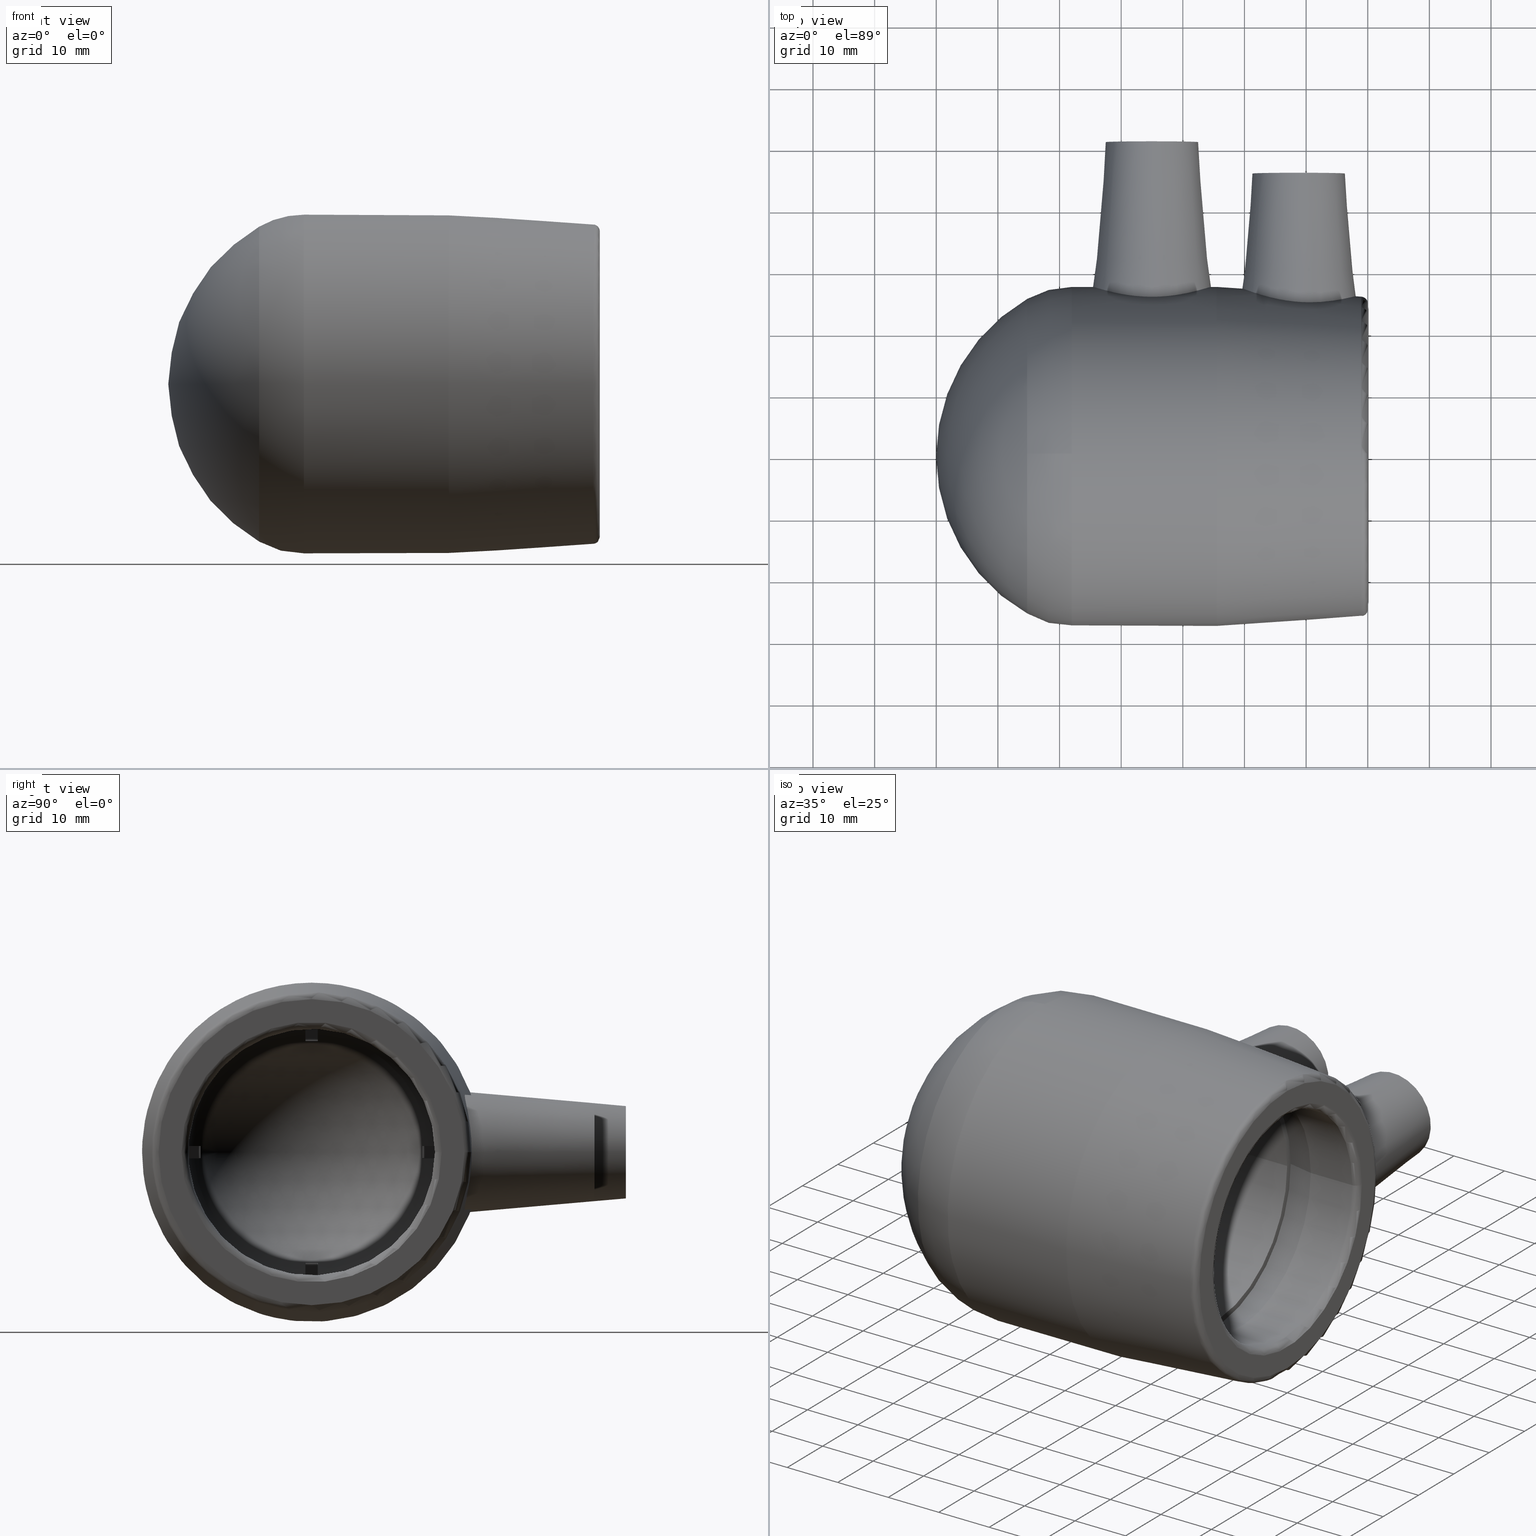
[diagram: canonical four-view strip — front | top / right | iso, engineering-drawing reading convention]
A machine part, canonical four-view strip (front | top / right | iso — engineering-drawing reading convention). The complete STEP part file that produces these views, byte-faithful:
ISO-10303-21;
HEADER;
/* Generated by software containing ST-Developer
 * from STEP Tools, Inc. (www.steptools.com) 
 */

FILE_DESCRIPTION(
/* description */ ('PLASSON END CAP MONOLITHIC 40'),
/* implementation_level */ '2;1');

FILE_NAME(
/* name */ 
'C:\\Dropbox\\KIMPROJECTS-Inventor\\99-16-3568-Processing\\ElectroFusi
on Fittings\\494204\\494204040.ipt.stp',
/* time_stamp */ '2017-11-06T09:17:08+02:00',
/* author */ ('\X2\041A043804400438043B043B\X0\'),
/* organization */ (''),
/* preprocessor_version */ 'ST-DEVELOPER v15.6',
/* originating_system */ 'Autodesk Inventor 2015',
/* authorisation */ '');

FILE_SCHEMA (('AUTOMOTIVE_DESIGN { 1 0 10303 214 3 1 1 }'));
ENDSEC;

DATA;
#10=MECHANICAL_DESIGN_GEOMETRIC_PRESENTATION_REPRESENTATION('',(#13),#1259);
#11=SHAPE_REPRESENTATION_RELATIONSHIP('SRR','None',#1268,#12);
#12=ADVANCED_BREP_SHAPE_REPRESENTATION($,(#14),#1258);
#13=STYLED_ITEM('',(#1277),#14);
#14=MANIFOLD_SOLID_BREP('Solid1',#628);
#15=(
BOUNDED_CURVE()
B_SPLINE_CURVE(2,(#1242,#1243,#1244),.UNSPECIFIED.,.F.,.F.)
B_SPLINE_CURVE_WITH_KNOTS((3,3),(-5.37453645053842E-19,0.524239682530944),
 .UNSPECIFIED.)
CURVE()
GEOMETRIC_REPRESENTATION_ITEM()
RATIONAL_B_SPLINE_CURVE((1.,0.965842837234663,1.))
REPRESENTATION_ITEM('')
);
#16=(
BOUNDED_SURFACE()
B_SPLINE_SURFACE(2,2,((#1214,#1215,#1216,#1217,#1218,#1219,#1220,#1221,
#1222),(#1223,#1224,#1225,#1226,#1227,#1228,#1229,#1230,#1231),(#1232,#1233,
#1234,#1235,#1236,#1237,#1238,#1239,#1240)),.UNSPECIFIED.,.F.,.T.,.F.)
B_SPLINE_SURFACE_WITH_KNOTS((3,3),(3,2,2,2,3),(-0.524239682530944,5.37453645053842E-19),
(-3.14159265358979,-1.5707963267949,0.,1.5707963267949,3.14159265358979),
 .UNSPECIFIED.)
GEOMETRIC_REPRESENTATION_ITEM()
RATIONAL_B_SPLINE_SURFACE(((1.,0.707106781186548,1.,0.707106781186548,1.,
0.707106781186548,1.,0.707106781186548,1.),(0.965842837234663,0.682954019769085,
0.965842837234663,0.682954019769085,0.965842837234663,0.682954019769085,
0.965842837234663,0.682954019769085,0.965842837234663),(1.,0.707106781186548,
1.,0.707106781186548,1.,0.707106781186548,1.,0.707106781186548,1.)))
REPRESENTATION_ITEM('')
SURFACE()
);
#17=CONICAL_SURFACE('',#695,7.5,5.);
#18=CONICAL_SURFACE('',#696,7.5,5.);
#19=CONICAL_SURFACE('',#700,26.675,3.85287733378491);
#20=CONICAL_SURFACE('',#715,20.4959653105634,11.9999999999999);
#21=FACE_BOUND('',#178,.T.);
#22=FACE_BOUND('',#180,.T.);
#23=FACE_BOUND('',#182,.T.);
#24=FACE_BOUND('',#184,.T.);
#25=FACE_BOUND('',#186,.T.);
#26=FACE_BOUND('',#188,.T.);
#27=FACE_BOUND('',#190,.T.);
#28=FACE_BOUND('',#192,.T.);
#29=FACE_BOUND('',#194,.T.);
#30=FACE_BOUND('',#196,.T.);
#31=FACE_BOUND('',#198,.T.);
#32=FACE_BOUND('',#200,.T.);
#33=FACE_BOUND('',#201,.T.);
#34=FACE_BOUND('',#203,.T.);
#35=FACE_BOUND('',#204,.T.);
#36=FACE_BOUND('',#206,.T.);
#37=FACE_BOUND('',#208,.T.);
#38=FACE_BOUND('',#210,.T.);
#39=FACE_BOUND('',#212,.T.);
#40=FACE_BOUND('',#215,.T.);
#41=FACE_BOUND('',#217,.T.);
#42=FACE_BOUND('',#219,.T.);
#43=CYLINDRICAL_SURFACE('',#679,2.);
#44=CYLINDRICAL_SURFACE('',#681,5.);
#45=CYLINDRICAL_SURFACE('',#687,2.);
#46=CYLINDRICAL_SURFACE('',#689,5.);
#47=CYLINDRICAL_SURFACE('',#702,27.5);
#48=CYLINDRICAL_SURFACE('',#710,20.);
#49=CYLINDRICAL_SURFACE('',#719,20.);
#50=TOROIDAL_SURFACE('',#666,13.,7.);
#51=TOROIDAL_SURFACE('',#668,13.,7.);
#52=TOROIDAL_SURFACE('',#670,13.,7.);
#53=TOROIDAL_SURFACE('',#672,13.,7.);
#54=TOROIDAL_SURFACE('',#697,26.4,1.1);
#55=TOROIDAL_SURFACE('',#705,21.1,1.1);
#56=TOROIDAL_SURFACE('',#712,24.821589869284,1.1);
#57=SPHERICAL_SURFACE('',#658,22.0166666666666);
#58=SPHERICAL_SURFACE('',#720,29.5166666666666);
#59=B_SPLINE_CURVE_WITH_KNOTS('',3,(#943,#944,#945,#946,#947,#948,#949,
#950),.UNSPECIFIED.,.F.,.F.,(4,2,2,4),(-0.347072642511362,-0.259029246738456,
-0.129514623369229,0.),.UNSPECIFIED.);
#60=B_SPLINE_CURVE_WITH_KNOTS('',3,(#960,#961,#962,#963,#964,#965,#966,
#967),.UNSPECIFIED.,.F.,.F.,(4,2,2,4),(0.,0.129514623369228,0.259029246738456,
0.34707264251136),.UNSPECIFIED.);
#61=B_SPLINE_CURVE_WITH_KNOTS('',3,(#980,#981,#982,#983,#984,#985,#986,
#987),.UNSPECIFIED.,.F.,.F.,(4,2,2,4),(-0.347072642511362,-0.259029246738456,
-0.129514623369229,0.),.UNSPECIFIED.);
#62=B_SPLINE_CURVE_WITH_KNOTS('',3,(#997,#998,#999,#1000,#1001,#1002,#1003,
#1004),.UNSPECIFIED.,.F.,.F.,(4,2,2,4),(0.,0.129514623369228,0.259029246738456,
0.34707264251136),.UNSPECIFIED.);
#63=B_SPLINE_CURVE_WITH_KNOTS('',3,(#1017,#1018,#1019,#1020,#1021,#1022,
#1023,#1024),.UNSPECIFIED.,.F.,.F.,(4,2,2,4),(-0.347072642511362,-0.259029246738456,
-0.129514623369229,0.),.UNSPECIFIED.);
#64=B_SPLINE_CURVE_WITH_KNOTS('',3,(#1034,#1035,#1036,#1037,#1038,#1039,
#1040,#1041),.UNSPECIFIED.,.F.,.F.,(4,2,2,4),(0.,0.129514623369228,0.259029246738456,
0.34707264251136),.UNSPECIFIED.);
#65=B_SPLINE_CURVE_WITH_KNOTS('',3,(#1057,#1058,#1059,#1060,#1061,#1062,
#1063,#1064),.UNSPECIFIED.,.F.,.F.,(4,2,2,4),(-0.347072642511362,-0.259029246738456,
-0.129514623369229,0.),.UNSPECIFIED.);
#66=B_SPLINE_CURVE_WITH_KNOTS('',3,(#1071,#1072,#1073,#1074,#1075,#1076,
#1077,#1078),.UNSPECIFIED.,.F.,.F.,(4,2,2,4),(0.,0.129514623369228,0.259029246738456,
0.347072642511361),.UNSPECIFIED.);
#67=B_SPLINE_CURVE_WITH_KNOTS('',3,(#1119,#1120,#1121,#1122,#1123,#1124,
#1125,#1126,#1127,#1128,#1129,#1130,#1131,#1132,#1133,#1134,#1135,#1136,
#1137,#1138,#1139,#1140,#1141,#1142,#1143,#1144,#1145,#1146,#1147,#1148,
#1149,#1150,#1151,#1152),.UNSPECIFIED.,.T.,.F.,(4,2,2,2,2,2,2,2,2,2,2,2,
2,2,2,2,4),(0.,0.344447446227781,0.688894892455563,1.03515672911697,1.38141856577838,
1.72768040243979,2.0739422391012,2.41838968532899,2.76283713155677,3.12630325109638,
3.489769370636,3.84603913638784,4.20230890213968,4.55857866789153,4.91484843364337,
5.27831455318298,5.6417806727226),.UNSPECIFIED.);
#68=B_SPLINE_CURVE_WITH_KNOTS('',3,(#1155,#1156,#1157,#1158,#1159,#1160,
#1161,#1162,#1163,#1164,#1165,#1166,#1167,#1168,#1169,#1170,#1171,#1172,
#1173,#1174,#1175,#1176,#1177,#1178,#1179,#1180,#1181,#1182,#1183,#1184,
#1185,#1186,#1187,#1188),.UNSPECIFIED.,.T.,.F.,(4,2,2,2,2,2,2,2,2,2,2,2,
2,2,2,2,4),(0.,0.367216770557128,0.734433541114256,1.0999420761903,1.46545061126634,
1.83095914634238,2.19646768141842,2.56368445197555,2.93090122253268,3.29811799308981,
3.66533476364693,4.03084329872297,4.39635183379902,4.76186036887506,5.1273689039511,
5.49458567450823,5.86180244506535),.UNSPECIFIED.);
#69=LINE('',#937,#89);
#70=LINE('',#939,#90);
#71=LINE('',#940,#91);
#72=LINE('',#953,#92);
#73=LINE('',#957,#93);
#74=LINE('',#974,#94);
#75=LINE('',#976,#95);
#76=LINE('',#977,#96);
#77=LINE('',#990,#97);
#78=LINE('',#994,#98);
#79=LINE('',#1011,#99);
#80=LINE('',#1013,#100);
#81=LINE('',#1014,#101);
#82=LINE('',#1027,#102);
#83=LINE('',#1031,#103);
#84=LINE('',#1083,#104);
#85=LINE('',#1084,#105);
#86=LINE('',#1088,#106);
#87=LINE('',#1089,#107);
#88=LINE('',#1091,#108);
#89=VECTOR('',#735,1.97498435543818);
#90=VECTOR('',#736,2.);
#91=VECTOR('',#737,1.97498435543818);
#92=VECTOR('',#742,5.12190964204429);
#93=VECTOR('',#747,5.12190964204429);
#94=VECTOR('',#756,1.97498435543818);
#95=VECTOR('',#757,2.);
#96=VECTOR('',#758,1.97498435543818);
#97=VECTOR('',#763,5.12190964204429);
#98=VECTOR('',#768,5.12190964204429);
#99=VECTOR('',#777,1.97498435543818);
#100=VECTOR('',#778,2.);
#101=VECTOR('',#779,1.97498435543818);
#102=VECTOR('',#784,5.12190964204429);
#103=VECTOR('',#789,5.12190964204429);
#104=VECTOR('',#828,1.97498435543818);
#105=VECTOR('',#829,5.12190964204429);
#106=VECTOR('',#834,1.97498435543818);
#107=VECTOR('',#835,2.);
#108=VECTOR('',#838,5.12190964204429);
#109=FACE_OUTER_BOUND('',#154,.T.);
#110=FACE_OUTER_BOUND('',#155,.T.);
#111=FACE_OUTER_BOUND('',#156,.T.);
#112=FACE_OUTER_BOUND('',#157,.T.);
#113=FACE_OUTER_BOUND('',#158,.T.);
#114=FACE_OUTER_BOUND('',#159,.T.);
#115=FACE_OUTER_BOUND('',#160,.T.);
#116=FACE_OUTER_BOUND('',#161,.T.);
#117=FACE_OUTER_BOUND('',#162,.T.);
#118=FACE_OUTER_BOUND('',#163,.T.);
#119=FACE_OUTER_BOUND('',#164,.T.);
#120=FACE_OUTER_BOUND('',#165,.T.);
#121=FACE_OUTER_BOUND('',#166,.T.);
#122=FACE_OUTER_BOUND('',#167,.T.);
#123=FACE_OUTER_BOUND('',#168,.T.);
#124=FACE_OUTER_BOUND('',#169,.T.);
#125=FACE_OUTER_BOUND('',#170,.T.);
#126=FACE_OUTER_BOUND('',#171,.T.);
#127=FACE_OUTER_BOUND('',#172,.T.);
#128=FACE_OUTER_BOUND('',#173,.T.);
#129=FACE_OUTER_BOUND('',#174,.T.);
#130=FACE_OUTER_BOUND('',#175,.T.);
#131=FACE_OUTER_BOUND('',#176,.T.);
#132=FACE_OUTER_BOUND('',#177,.T.);
#133=FACE_OUTER_BOUND('',#179,.T.);
#134=FACE_OUTER_BOUND('',#181,.T.);
#135=FACE_OUTER_BOUND('',#183,.T.);
#136=FACE_OUTER_BOUND('',#185,.T.);
#137=FACE_OUTER_BOUND('',#187,.T.);
#138=FACE_OUTER_BOUND('',#189,.T.);
#139=FACE_OUTER_BOUND('',#191,.T.);
#140=FACE_OUTER_BOUND('',#193,.T.);
#141=FACE_OUTER_BOUND('',#195,.T.);
#142=FACE_OUTER_BOUND('',#197,.T.);
#143=FACE_OUTER_BOUND('',#199,.T.);
#144=FACE_OUTER_BOUND('',#202,.T.);
#145=FACE_OUTER_BOUND('',#205,.T.);
#146=FACE_OUTER_BOUND('',#207,.T.);
#147=FACE_OUTER_BOUND('',#209,.T.);
#148=FACE_OUTER_BOUND('',#211,.T.);
#149=FACE_OUTER_BOUND('',#213,.T.);
#150=FACE_OUTER_BOUND('',#214,.T.);
#151=FACE_OUTER_BOUND('',#216,.T.);
#152=FACE_OUTER_BOUND('',#218,.T.);
#153=FACE_OUTER_BOUND('',#220,.T.);
#154=EDGE_LOOP('',(#403));
#155=EDGE_LOOP('',(#404));
#156=EDGE_LOOP('',(#405,#406,#407,#408));
#157=EDGE_LOOP('',(#409,#410,#411,#412));
#158=EDGE_LOOP('',(#413,#414,#415,#416));
#159=EDGE_LOOP('',(#417,#418,#419,#420));
#160=EDGE_LOOP('',(#421,#422,#423,#424));
#161=EDGE_LOOP('',(#425,#426,#427,#428));
#162=EDGE_LOOP('',(#429,#430,#431,#432));
#163=EDGE_LOOP('',(#433,#434,#435,#436));
#164=EDGE_LOOP('',(#437,#438,#439,#440));
#165=EDGE_LOOP('',(#441,#442,#443,#444));
#166=EDGE_LOOP('',(#445,#446,#447,#448));
#167=EDGE_LOOP('',(#449,#450,#451,#452));
#168=EDGE_LOOP('',(#453,#454,#455,#456,#457,#458,#459,#460,#461,#462,#463,
#464,#465,#466,#467,#468));
#169=EDGE_LOOP('',(#469,#470,#471,#472));
#170=EDGE_LOOP('',(#473,#474,#475,#476));
#171=EDGE_LOOP('',(#477,#478,#479,#480));
#172=EDGE_LOOP('',(#481,#482,#483,#484));
#173=EDGE_LOOP('',(#485,#486,#487,#488));
#174=EDGE_LOOP('',(#489,#490,#491,#492));
#175=EDGE_LOOP('',(#493,#494,#495,#496));
#176=EDGE_LOOP('',(#497,#498,#499,#500));
#177=EDGE_LOOP('',(#501));
#178=EDGE_LOOP('',(#502));
#179=EDGE_LOOP('',(#503));
#180=EDGE_LOOP('',(#504));
#181=EDGE_LOOP('',(#505));
#182=EDGE_LOOP('',(#506));
#183=EDGE_LOOP('',(#507));
#184=EDGE_LOOP('',(#508));
#185=EDGE_LOOP('',(#509));
#186=EDGE_LOOP('',(#510));
#187=EDGE_LOOP('',(#511));
#188=EDGE_LOOP('',(#512));
#189=EDGE_LOOP('',(#513));
#190=EDGE_LOOP('',(#514));
#191=EDGE_LOOP('',(#515));
#192=EDGE_LOOP('',(#516));
#193=EDGE_LOOP('',(#517));
#194=EDGE_LOOP('',(#518));
#195=EDGE_LOOP('',(#519));
#196=EDGE_LOOP('',(#520));
#197=EDGE_LOOP('',(#521));
#198=EDGE_LOOP('',(#522));
#199=EDGE_LOOP('',(#523));
#200=EDGE_LOOP('',(#524));
#201=EDGE_LOOP('',(#525));
#202=EDGE_LOOP('',(#526,#527));
#203=EDGE_LOOP('',(#528));
#204=EDGE_LOOP('',(#529));
#205=EDGE_LOOP('',(#530));
#206=EDGE_LOOP('',(#531));
#207=EDGE_LOOP('',(#532));
#208=EDGE_LOOP('',(#533));
#209=EDGE_LOOP('',(#534));
#210=EDGE_LOOP('',(#535));
#211=EDGE_LOOP('',(#536));
#212=EDGE_LOOP('',(#537));
#213=EDGE_LOOP('',(#538,#539,#540,#541,#542,#543));
#214=EDGE_LOOP('',(#544));
#215=EDGE_LOOP('',(#545));
#216=EDGE_LOOP('',(#546));
#217=EDGE_LOOP('',(#547));
#218=EDGE_LOOP('',(#548,#549,#550,#551,#552,#553,#554,#555));
#219=EDGE_LOOP('',(#556));
#220=EDGE_LOOP('',(#557,#558));
#221=CIRCLE('',#631,2.);
#222=CIRCLE('',#633,2.);
#223=CIRCLE('',#635,20.);
#224=CIRCLE('',#637,21.9939448737854);
#225=CIRCLE('',#639,12.6780760019456);
#226=CIRCLE('',#641,21.9939448737854);
#227=CIRCLE('',#643,20.);
#228=CIRCLE('',#645,21.9939448737854);
#229=CIRCLE('',#647,12.6780760019456);
#230=CIRCLE('',#649,21.9939448737854);
#231=CIRCLE('',#651,20.);
#232=CIRCLE('',#653,21.9939448737854);
#233=CIRCLE('',#655,12.6780760019456);
#234=CIRCLE('',#657,21.9939448737854);
#235=CIRCLE('',#659,19.0599334073252);
#236=CIRCLE('',#660,21.9939448737854);
#237=CIRCLE('',#661,12.6780760019456);
#238=CIRCLE('',#662,21.9939448737854);
#239=CIRCLE('',#663,19.0599334073252);
#240=CIRCLE('',#664,19.0599334073252);
#241=CIRCLE('',#665,19.0599334073252);
#242=CIRCLE('',#667,20.);
#243=CIRCLE('',#669,20.);
#244=CIRCLE('',#671,20.);
#245=CIRCLE('',#673,20.);
#246=CIRCLE('',#676,20.);
#247=CIRCLE('',#680,2.);
#248=CIRCLE('',#682,5.);
#249=CIRCLE('',#683,5.);
#250=CIRCLE('',#686,7.5);
#251=CIRCLE('',#688,2.);
#252=CIRCLE('',#690,5.);
#253=CIRCLE('',#691,5.);
#254=CIRCLE('',#694,7.5);
#255=CIRCLE('',#698,27.5);
#256=CIRCLE('',#699,27.4975138683145);
#257=CIRCLE('',#701,25.9191037375985);
#258=CIRCLE('',#703,27.5);
#259=CIRCLE('',#704,27.5);
#260=CIRCLE('',#706,21.1);
#261=CIRCLE('',#707,20.);
#262=CIRCLE('',#709,24.821589869284);
#263=CIRCLE('',#711,20.);
#264=CIRCLE('',#713,25.5527192008879);
#265=CIRCLE('',#714,25.5527192008879);
#266=CIRCLE('',#716,20.9919306211268);
#267=CIRCLE('',#718,20.);
#268=VERTEX_POINT('',#927);
#269=VERTEX_POINT('',#930);
#270=VERTEX_POINT('',#933);
#271=VERTEX_POINT('',#934);
#272=VERTEX_POINT('',#936);
#273=VERTEX_POINT('',#938);
#274=VERTEX_POINT('',#942);
#275=VERTEX_POINT('',#951);
#276=VERTEX_POINT('',#955);
#277=VERTEX_POINT('',#959);
#278=VERTEX_POINT('',#970);
#279=VERTEX_POINT('',#971);
#280=VERTEX_POINT('',#973);
#281=VERTEX_POINT('',#975);
#282=VERTEX_POINT('',#979);
#283=VERTEX_POINT('',#988);
#284=VERTEX_POINT('',#992);
#285=VERTEX_POINT('',#996);
#286=VERTEX_POINT('',#1007);
#287=VERTEX_POINT('',#1008);
#288=VERTEX_POINT('',#1010);
#289=VERTEX_POINT('',#1012);
#290=VERTEX_POINT('',#1016);
#291=VERTEX_POINT('',#1025);
#292=VERTEX_POINT('',#1029);
#293=VERTEX_POINT('',#1033);
#294=VERTEX_POINT('',#1044);
#295=VERTEX_POINT('',#1046);
#296=VERTEX_POINT('',#1048);
#297=VERTEX_POINT('',#1050);
#298=VERTEX_POINT('',#1056);
#299=VERTEX_POINT('',#1069);
#300=VERTEX_POINT('',#1082);
#301=VERTEX_POINT('',#1087);
#302=VERTEX_POINT('',#1094);
#303=VERTEX_POINT('',#1097);
#304=VERTEX_POINT('',#1099);
#305=VERTEX_POINT('',#1103);
#306=VERTEX_POINT('',#1106);
#307=VERTEX_POINT('',#1109);
#308=VERTEX_POINT('',#1111);
#309=VERTEX_POINT('',#1115);
#310=VERTEX_POINT('',#1118);
#311=VERTEX_POINT('',#1154);
#312=VERTEX_POINT('',#1190);
#313=VERTEX_POINT('',#1192);
#314=VERTEX_POINT('',#1195);
#315=VERTEX_POINT('',#1198);
#316=VERTEX_POINT('',#1199);
#317=VERTEX_POINT('',#1203);
#318=VERTEX_POINT('',#1205);
#319=VERTEX_POINT('',#1208);
#320=VERTEX_POINT('',#1211);
#321=VERTEX_POINT('',#1241);
#322=VERTEX_POINT('',#1245);
#323=VERTEX_POINT('',#1249);
#324=VERTEX_POINT('',#1252);
#325=EDGE_CURVE('',#268,#268,#221,.T.);
#326=EDGE_CURVE('',#269,#269,#222,.T.);
#327=EDGE_CURVE('',#270,#271,#223,.T.);
#328=EDGE_CURVE('',#272,#271,#69,.T.);
#329=EDGE_CURVE('',#272,#273,#70,.T.);
#330=EDGE_CURVE('',#270,#273,#71,.T.);
#331=EDGE_CURVE('',#274,#271,#59,.T.);
#332=EDGE_CURVE('',#275,#274,#224,.T.);
#333=EDGE_CURVE('',#275,#272,#72,.T.);
#334=EDGE_CURVE('',#276,#275,#225,.T.);
#335=EDGE_CURVE('',#273,#276,#73,.T.);
#336=EDGE_CURVE('',#270,#277,#60,.T.);
#337=EDGE_CURVE('',#277,#276,#226,.T.);
#338=EDGE_CURVE('',#278,#279,#227,.T.);
#339=EDGE_CURVE('',#280,#279,#74,.T.);
#340=EDGE_CURVE('',#280,#281,#75,.T.);
#341=EDGE_CURVE('',#278,#281,#76,.T.);
#342=EDGE_CURVE('',#282,#279,#61,.T.);
#343=EDGE_CURVE('',#283,#282,#228,.T.);
#344=EDGE_CURVE('',#283,#280,#77,.T.);
#345=EDGE_CURVE('',#284,#283,#229,.T.);
#346=EDGE_CURVE('',#281,#284,#78,.T.);
#347=EDGE_CURVE('',#278,#285,#62,.T.);
#348=EDGE_CURVE('',#285,#284,#230,.T.);
#349=EDGE_CURVE('',#286,#287,#231,.T.);
#350=EDGE_CURVE('',#288,#287,#79,.T.);
#351=EDGE_CURVE('',#288,#289,#80,.T.);
#352=EDGE_CURVE('',#286,#289,#81,.T.);
#353=EDGE_CURVE('',#290,#287,#63,.T.);
#354=EDGE_CURVE('',#291,#290,#232,.T.);
#355=EDGE_CURVE('',#291,#288,#82,.T.);
#356=EDGE_CURVE('',#292,#291,#233,.T.);
#357=EDGE_CURVE('',#289,#292,#83,.T.);
#358=EDGE_CURVE('',#286,#293,#64,.T.);
#359=EDGE_CURVE('',#293,#292,#234,.T.);
#360=EDGE_CURVE('',#274,#294,#235,.T.);
#361=EDGE_CURVE('',#294,#295,#236,.T.);
#362=EDGE_CURVE('',#295,#296,#237,.T.);
#363=EDGE_CURVE('',#296,#297,#238,.T.);
#364=EDGE_CURVE('',#297,#293,#239,.T.);
#365=EDGE_CURVE('',#290,#285,#240,.T.);
#366=EDGE_CURVE('',#282,#277,#241,.T.);
#367=EDGE_CURVE('',#297,#298,#65,.T.);
#368=EDGE_CURVE('',#298,#286,#242,.T.);
#369=EDGE_CURVE('',#287,#278,#243,.T.);
#370=EDGE_CURVE('',#271,#299,#244,.T.);
#371=EDGE_CURVE('',#299,#294,#66,.T.);
#372=EDGE_CURVE('',#279,#270,#245,.T.);
#373=EDGE_CURVE('',#299,#300,#84,.T.);
#374=EDGE_CURVE('',#300,#295,#85,.T.);
#375=EDGE_CURVE('',#299,#298,#246,.T.);
#376=EDGE_CURVE('',#301,#298,#86,.T.);
#377=EDGE_CURVE('',#301,#300,#87,.T.);
#378=EDGE_CURVE('',#296,#301,#88,.T.);
#379=EDGE_CURVE('',#302,#302,#247,.T.);
#380=EDGE_CURVE('',#303,#303,#248,.T.);
#381=EDGE_CURVE('',#304,#304,#249,.T.);
#382=EDGE_CURVE('',#305,#305,#250,.T.);
#383=EDGE_CURVE('',#306,#306,#251,.T.);
#384=EDGE_CURVE('',#307,#307,#252,.T.);
#385=EDGE_CURVE('',#308,#308,#253,.T.);
#386=EDGE_CURVE('',#309,#309,#254,.T.);
#387=EDGE_CURVE('',#310,#310,#67,.T.);
#388=EDGE_CURVE('',#311,#311,#68,.T.);
#389=EDGE_CURVE('',#312,#312,#255,.T.);
#390=EDGE_CURVE('',#313,#313,#256,.T.);
#391=EDGE_CURVE('',#314,#314,#257,.T.);
#392=EDGE_CURVE('',#315,#316,#258,.T.);
#393=EDGE_CURVE('',#316,#315,#259,.T.);
#394=EDGE_CURVE('',#317,#317,#260,.T.);
#395=EDGE_CURVE('',#318,#318,#261,.T.);
#396=EDGE_CURVE('',#319,#319,#262,.T.);
#397=EDGE_CURVE('',#320,#320,#263,.T.);
#398=EDGE_CURVE('',#316,#321,#15,.T.);
#399=EDGE_CURVE('',#321,#322,#264,.T.);
#400=EDGE_CURVE('',#322,#321,#265,.T.);
#401=EDGE_CURVE('',#323,#323,#266,.T.);
#402=EDGE_CURVE('',#324,#324,#267,.T.);
#403=ORIENTED_EDGE('',*,*,#325,.F.);
#404=ORIENTED_EDGE('',*,*,#326,.F.);
#405=ORIENTED_EDGE('',*,*,#327,.T.);
#406=ORIENTED_EDGE('',*,*,#328,.F.);
#407=ORIENTED_EDGE('',*,*,#329,.T.);
#408=ORIENTED_EDGE('',*,*,#330,.F.);
#409=ORIENTED_EDGE('',*,*,#331,.F.);
#410=ORIENTED_EDGE('',*,*,#332,.F.);
#411=ORIENTED_EDGE('',*,*,#333,.T.);
#412=ORIENTED_EDGE('',*,*,#328,.T.);
#413=ORIENTED_EDGE('',*,*,#334,.F.);
#414=ORIENTED_EDGE('',*,*,#335,.F.);
#415=ORIENTED_EDGE('',*,*,#329,.F.);
#416=ORIENTED_EDGE('',*,*,#333,.F.);
#417=ORIENTED_EDGE('',*,*,#336,.F.);
#418=ORIENTED_EDGE('',*,*,#330,.T.);
#419=ORIENTED_EDGE('',*,*,#335,.T.);
#420=ORIENTED_EDGE('',*,*,#337,.F.);
#421=ORIENTED_EDGE('',*,*,#338,.T.);
#422=ORIENTED_EDGE('',*,*,#339,.F.);
#423=ORIENTED_EDGE('',*,*,#340,.T.);
#424=ORIENTED_EDGE('',*,*,#341,.F.);
#425=ORIENTED_EDGE('',*,*,#342,.F.);
#426=ORIENTED_EDGE('',*,*,#343,.F.);
#427=ORIENTED_EDGE('',*,*,#344,.T.);
#428=ORIENTED_EDGE('',*,*,#339,.T.);
#429=ORIENTED_EDGE('',*,*,#345,.F.);
#430=ORIENTED_EDGE('',*,*,#346,.F.);
#431=ORIENTED_EDGE('',*,*,#340,.F.);
#432=ORIENTED_EDGE('',*,*,#344,.F.);
#433=ORIENTED_EDGE('',*,*,#347,.F.);
#434=ORIENTED_EDGE('',*,*,#341,.T.);
#435=ORIENTED_EDGE('',*,*,#346,.T.);
#436=ORIENTED_EDGE('',*,*,#348,.F.);
#437=ORIENTED_EDGE('',*,*,#349,.T.);
#438=ORIENTED_EDGE('',*,*,#350,.F.);
#439=ORIENTED_EDGE('',*,*,#351,.T.);
#440=ORIENTED_EDGE('',*,*,#352,.F.);
#441=ORIENTED_EDGE('',*,*,#353,.F.);
#442=ORIENTED_EDGE('',*,*,#354,.F.);
#443=ORIENTED_EDGE('',*,*,#355,.T.);
#444=ORIENTED_EDGE('',*,*,#350,.T.);
#445=ORIENTED_EDGE('',*,*,#356,.F.);
#446=ORIENTED_EDGE('',*,*,#357,.F.);
#447=ORIENTED_EDGE('',*,*,#351,.F.);
#448=ORIENTED_EDGE('',*,*,#355,.F.);
#449=ORIENTED_EDGE('',*,*,#358,.F.);
#450=ORIENTED_EDGE('',*,*,#352,.T.);
#451=ORIENTED_EDGE('',*,*,#357,.T.);
#452=ORIENTED_EDGE('',*,*,#359,.F.);
#453=ORIENTED_EDGE('',*,*,#337,.T.);
#454=ORIENTED_EDGE('',*,*,#334,.T.);
#455=ORIENTED_EDGE('',*,*,#332,.T.);
#456=ORIENTED_EDGE('',*,*,#360,.T.);
#457=ORIENTED_EDGE('',*,*,#361,.T.);
#458=ORIENTED_EDGE('',*,*,#362,.T.);
#459=ORIENTED_EDGE('',*,*,#363,.T.);
#460=ORIENTED_EDGE('',*,*,#364,.T.);
#461=ORIENTED_EDGE('',*,*,#359,.T.);
#462=ORIENTED_EDGE('',*,*,#356,.T.);
#463=ORIENTED_EDGE('',*,*,#354,.T.);
#464=ORIENTED_EDGE('',*,*,#365,.T.);
#465=ORIENTED_EDGE('',*,*,#348,.T.);
#466=ORIENTED_EDGE('',*,*,#345,.T.);
#467=ORIENTED_EDGE('',*,*,#343,.T.);
#468=ORIENTED_EDGE('',*,*,#366,.T.);
#469=ORIENTED_EDGE('',*,*,#358,.T.);
#470=ORIENTED_EDGE('',*,*,#364,.F.);
#471=ORIENTED_EDGE('',*,*,#367,.T.);
#472=ORIENTED_EDGE('',*,*,#368,.T.);
#473=ORIENTED_EDGE('',*,*,#347,.T.);
#474=ORIENTED_EDGE('',*,*,#365,.F.);
#475=ORIENTED_EDGE('',*,*,#353,.T.);
#476=ORIENTED_EDGE('',*,*,#369,.T.);
#477=ORIENTED_EDGE('',*,*,#331,.T.);
#478=ORIENTED_EDGE('',*,*,#370,.T.);
#479=ORIENTED_EDGE('',*,*,#371,.T.);
#480=ORIENTED_EDGE('',*,*,#360,.F.);
#481=ORIENTED_EDGE('',*,*,#336,.T.);
#482=ORIENTED_EDGE('',*,*,#366,.F.);
#483=ORIENTED_EDGE('',*,*,#342,.T.);
#484=ORIENTED_EDGE('',*,*,#372,.T.);
#485=ORIENTED_EDGE('',*,*,#361,.F.);
#486=ORIENTED_EDGE('',*,*,#371,.F.);
#487=ORIENTED_EDGE('',*,*,#373,.T.);
#488=ORIENTED_EDGE('',*,*,#374,.T.);
#489=ORIENTED_EDGE('',*,*,#375,.T.);
#490=ORIENTED_EDGE('',*,*,#376,.F.);
#491=ORIENTED_EDGE('',*,*,#377,.T.);
#492=ORIENTED_EDGE('',*,*,#373,.F.);
#493=ORIENTED_EDGE('',*,*,#363,.F.);
#494=ORIENTED_EDGE('',*,*,#378,.T.);
#495=ORIENTED_EDGE('',*,*,#376,.T.);
#496=ORIENTED_EDGE('',*,*,#367,.F.);
#497=ORIENTED_EDGE('',*,*,#362,.F.);
#498=ORIENTED_EDGE('',*,*,#374,.F.);
#499=ORIENTED_EDGE('',*,*,#377,.F.);
#500=ORIENTED_EDGE('',*,*,#378,.F.);
#501=ORIENTED_EDGE('',*,*,#325,.T.);
#502=ORIENTED_EDGE('',*,*,#379,.T.);
#503=ORIENTED_EDGE('',*,*,#380,.T.);
#504=ORIENTED_EDGE('',*,*,#381,.F.);
#505=ORIENTED_EDGE('',*,*,#380,.F.);
#506=ORIENTED_EDGE('',*,*,#379,.F.);
#507=ORIENTED_EDGE('',*,*,#382,.F.);
#508=ORIENTED_EDGE('',*,*,#381,.T.);
#509=ORIENTED_EDGE('',*,*,#326,.T.);
#510=ORIENTED_EDGE('',*,*,#383,.T.);
#511=ORIENTED_EDGE('',*,*,#384,.T.);
#512=ORIENTED_EDGE('',*,*,#385,.F.);
#513=ORIENTED_EDGE('',*,*,#384,.F.);
#514=ORIENTED_EDGE('',*,*,#383,.F.);
#515=ORIENTED_EDGE('',*,*,#386,.F.);
#516=ORIENTED_EDGE('',*,*,#385,.T.);
#517=ORIENTED_EDGE('',*,*,#382,.T.);
#518=ORIENTED_EDGE('',*,*,#387,.F.);
#519=ORIENTED_EDGE('',*,*,#386,.T.);
#520=ORIENTED_EDGE('',*,*,#388,.F.);
#521=ORIENTED_EDGE('',*,*,#389,.T.);
#522=ORIENTED_EDGE('',*,*,#390,.T.);
#523=ORIENTED_EDGE('',*,*,#391,.F.);
#524=ORIENTED_EDGE('',*,*,#387,.T.);
#525=ORIENTED_EDGE('',*,*,#390,.F.);
#526=ORIENTED_EDGE('',*,*,#392,.T.);
#527=ORIENTED_EDGE('',*,*,#393,.T.);
#528=ORIENTED_EDGE('',*,*,#388,.T.);
#529=ORIENTED_EDGE('',*,*,#389,.F.);
#530=ORIENTED_EDGE('',*,*,#394,.T.);
#531=ORIENTED_EDGE('',*,*,#395,.T.);
#532=ORIENTED_EDGE('',*,*,#396,.F.);
#533=ORIENTED_EDGE('',*,*,#394,.F.);
#534=ORIENTED_EDGE('',*,*,#397,.F.);
#535=ORIENTED_EDGE('',*,*,#395,.F.);
#536=ORIENTED_EDGE('',*,*,#396,.T.);
#537=ORIENTED_EDGE('',*,*,#391,.T.);
#538=ORIENTED_EDGE('',*,*,#392,.F.);
#539=ORIENTED_EDGE('',*,*,#393,.F.);
#540=ORIENTED_EDGE('',*,*,#398,.T.);
#541=ORIENTED_EDGE('',*,*,#399,.T.);
#542=ORIENTED_EDGE('',*,*,#400,.T.);
#543=ORIENTED_EDGE('',*,*,#398,.F.);
#544=ORIENTED_EDGE('',*,*,#401,.F.);
#545=ORIENTED_EDGE('',*,*,#397,.T.);
#546=ORIENTED_EDGE('',*,*,#401,.T.);
#547=ORIENTED_EDGE('',*,*,#402,.F.);
#548=ORIENTED_EDGE('',*,*,#368,.F.);
#549=ORIENTED_EDGE('',*,*,#375,.F.);
#550=ORIENTED_EDGE('',*,*,#370,.F.);
#551=ORIENTED_EDGE('',*,*,#327,.F.);
#552=ORIENTED_EDGE('',*,*,#372,.F.);
#553=ORIENTED_EDGE('',*,*,#338,.F.);
#554=ORIENTED_EDGE('',*,*,#369,.F.);
#555=ORIENTED_EDGE('',*,*,#349,.F.);
#556=ORIENTED_EDGE('',*,*,#402,.T.);
#557=ORIENTED_EDGE('',*,*,#400,.F.);
#558=ORIENTED_EDGE('',*,*,#399,.F.);
#559=PLANE('',#630);
#560=PLANE('',#632);
#561=PLANE('',#634);
#562=PLANE('',#636);
#563=PLANE('',#638);
#564=PLANE('',#640);
#565=PLANE('',#642);
#566=PLANE('',#644);
#567=PLANE('',#646);
#568=PLANE('',#648);
#569=PLANE('',#650);
#570=PLANE('',#652);
#571=PLANE('',#654);
#572=PLANE('',#656);
#573=PLANE('',#674);
#574=PLANE('',#675);
#575=PLANE('',#677);
#576=PLANE('',#678);
#577=PLANE('',#684);
#578=PLANE('',#685);
#579=PLANE('',#692);
#580=PLANE('',#693);
#581=PLANE('',#708);
#582=PLANE('',#717);
#583=ADVANCED_FACE('',(#109),#559,.T.);
#584=ADVANCED_FACE('',(#110),#560,.T.);
#585=ADVANCED_FACE('',(#111),#561,.T.);
#586=ADVANCED_FACE('',(#112),#562,.T.);
#587=ADVANCED_FACE('',(#113),#563,.T.);
#588=ADVANCED_FACE('',(#114),#564,.T.);
#589=ADVANCED_FACE('',(#115),#565,.T.);
#590=ADVANCED_FACE('',(#116),#566,.T.);
#591=ADVANCED_FACE('',(#117),#567,.T.);
#592=ADVANCED_FACE('',(#118),#568,.T.);
#593=ADVANCED_FACE('',(#119),#569,.T.);
#594=ADVANCED_FACE('',(#120),#570,.T.);
#595=ADVANCED_FACE('',(#121),#571,.T.);
#596=ADVANCED_FACE('',(#122),#572,.T.);
#597=ADVANCED_FACE('',(#123),#57,.F.);
#598=ADVANCED_FACE('',(#124),#50,.F.);
#599=ADVANCED_FACE('',(#125),#51,.F.);
#600=ADVANCED_FACE('',(#126),#52,.F.);
#601=ADVANCED_FACE('',(#127),#53,.F.);
#602=ADVANCED_FACE('',(#128),#573,.T.);
#603=ADVANCED_FACE('',(#129),#574,.T.);
#604=ADVANCED_FACE('',(#130),#575,.T.);
#605=ADVANCED_FACE('',(#131),#576,.T.);
#606=ADVANCED_FACE('',(#132,#21),#43,.T.);
#607=ADVANCED_FACE('',(#133,#22),#44,.F.);
#608=ADVANCED_FACE('',(#134,#23),#577,.T.);
#609=ADVANCED_FACE('',(#135,#24),#578,.T.);
#610=ADVANCED_FACE('',(#136,#25),#45,.T.);
#611=ADVANCED_FACE('',(#137,#26),#46,.F.);
#612=ADVANCED_FACE('',(#138,#27),#579,.T.);
#613=ADVANCED_FACE('',(#139,#28),#580,.T.);
#614=ADVANCED_FACE('',(#140,#29),#17,.T.);
#615=ADVANCED_FACE('',(#141,#30),#18,.T.);
#616=ADVANCED_FACE('',(#142,#31),#54,.T.);
#617=ADVANCED_FACE('',(#143,#32,#33),#19,.T.);
#618=ADVANCED_FACE('',(#144,#34,#35),#47,.T.);
#619=ADVANCED_FACE('',(#145,#36),#55,.T.);
#620=ADVANCED_FACE('',(#146,#37),#581,.T.);
#621=ADVANCED_FACE('',(#147,#38),#48,.F.);
#622=ADVANCED_FACE('',(#148,#39),#56,.T.);
#623=ADVANCED_FACE('',(#149),#16,.F.);
#624=ADVANCED_FACE('',(#150,#40),#20,.F.);
#625=ADVANCED_FACE('',(#151,#41),#582,.T.);
#626=ADVANCED_FACE('',(#152,#42),#49,.F.);
#627=ADVANCED_FACE('',(#153),#58,.T.);
#628=CLOSED_SHELL('',(#583,#584,#585,#586,#587,#588,#589,#590,#591,#592,
#593,#594,#595,#596,#597,#598,#599,#600,#601,#602,#603,#604,#605,#606,#607,
#608,#609,#610,#611,#612,#613,#614,#615,#616,#617,#618,#619,#620,#621,#622,
#623,#624,#625,#626,#627));
#629=AXIS2_PLACEMENT_3D('placement',#925,#721,#722);
#630=AXIS2_PLACEMENT_3D('',#926,#723,#724);
#631=AXIS2_PLACEMENT_3D('',#928,#725,#726);
#632=AXIS2_PLACEMENT_3D('',#929,#727,#728);
#633=AXIS2_PLACEMENT_3D('',#931,#729,#730);
#634=AXIS2_PLACEMENT_3D('',#932,#731,#732);
#635=AXIS2_PLACEMENT_3D('',#935,#733,#734);
#636=AXIS2_PLACEMENT_3D('',#941,#738,#739);
#637=AXIS2_PLACEMENT_3D('',#952,#740,#741);
#638=AXIS2_PLACEMENT_3D('',#954,#743,#744);
#639=AXIS2_PLACEMENT_3D('',#956,#745,#746);
#640=AXIS2_PLACEMENT_3D('',#958,#748,#749);
#641=AXIS2_PLACEMENT_3D('',#968,#750,#751);
#642=AXIS2_PLACEMENT_3D('',#969,#752,#753);
#643=AXIS2_PLACEMENT_3D('',#972,#754,#755);
#644=AXIS2_PLACEMENT_3D('',#978,#759,#760);
#645=AXIS2_PLACEMENT_3D('',#989,#761,#762);
#646=AXIS2_PLACEMENT_3D('',#991,#764,#765);
#647=AXIS2_PLACEMENT_3D('',#993,#766,#767);
#648=AXIS2_PLACEMENT_3D('',#995,#769,#770);
#649=AXIS2_PLACEMENT_3D('',#1005,#771,#772);
#650=AXIS2_PLACEMENT_3D('',#1006,#773,#774);
#651=AXIS2_PLACEMENT_3D('',#1009,#775,#776);
#652=AXIS2_PLACEMENT_3D('',#1015,#780,#781);
#653=AXIS2_PLACEMENT_3D('',#1026,#782,#783);
#654=AXIS2_PLACEMENT_3D('',#1028,#785,#786);
#655=AXIS2_PLACEMENT_3D('',#1030,#787,#788);
#656=AXIS2_PLACEMENT_3D('',#1032,#790,#791);
#657=AXIS2_PLACEMENT_3D('',#1042,#792,#793);
#658=AXIS2_PLACEMENT_3D('',#1043,#794,#795);
#659=AXIS2_PLACEMENT_3D('',#1045,#796,#797);
#660=AXIS2_PLACEMENT_3D('',#1047,#798,#799);
#661=AXIS2_PLACEMENT_3D('',#1049,#800,#801);
#662=AXIS2_PLACEMENT_3D('',#1051,#802,#803);
#663=AXIS2_PLACEMENT_3D('',#1052,#804,#805);
#664=AXIS2_PLACEMENT_3D('',#1053,#806,#807);
#665=AXIS2_PLACEMENT_3D('',#1054,#808,#809);
#666=AXIS2_PLACEMENT_3D('',#1055,#810,#811);
#667=AXIS2_PLACEMENT_3D('',#1065,#812,#813);
#668=AXIS2_PLACEMENT_3D('',#1066,#814,#815);
#669=AXIS2_PLACEMENT_3D('',#1067,#816,#817);
#670=AXIS2_PLACEMENT_3D('',#1068,#818,#819);
#671=AXIS2_PLACEMENT_3D('',#1070,#820,#821);
#672=AXIS2_PLACEMENT_3D('',#1079,#822,#823);
#673=AXIS2_PLACEMENT_3D('',#1080,#824,#825);
#674=AXIS2_PLACEMENT_3D('',#1081,#826,#827);
#675=AXIS2_PLACEMENT_3D('',#1085,#830,#831);
#676=AXIS2_PLACEMENT_3D('',#1086,#832,#833);
#677=AXIS2_PLACEMENT_3D('',#1090,#836,#837);
#678=AXIS2_PLACEMENT_3D('',#1092,#839,#840);
#679=AXIS2_PLACEMENT_3D('',#1093,#841,#842);
#680=AXIS2_PLACEMENT_3D('',#1095,#843,#844);
#681=AXIS2_PLACEMENT_3D('',#1096,#845,#846);
#682=AXIS2_PLACEMENT_3D('',#1098,#847,#848);
#683=AXIS2_PLACEMENT_3D('',#1100,#849,#850);
#684=AXIS2_PLACEMENT_3D('',#1101,#851,#852);
#685=AXIS2_PLACEMENT_3D('',#1102,#853,#854);
#686=AXIS2_PLACEMENT_3D('',#1104,#855,#856);
#687=AXIS2_PLACEMENT_3D('',#1105,#857,#858);
#688=AXIS2_PLACEMENT_3D('',#1107,#859,#860);
#689=AXIS2_PLACEMENT_3D('',#1108,#861,#862);
#690=AXIS2_PLACEMENT_3D('',#1110,#863,#864);
#691=AXIS2_PLACEMENT_3D('',#1112,#865,#866);
#692=AXIS2_PLACEMENT_3D('',#1113,#867,#868);
#693=AXIS2_PLACEMENT_3D('',#1114,#869,#870);
#694=AXIS2_PLACEMENT_3D('',#1116,#871,#872);
#695=AXIS2_PLACEMENT_3D('',#1117,#873,#874);
#696=AXIS2_PLACEMENT_3D('',#1153,#875,#876);
#697=AXIS2_PLACEMENT_3D('',#1189,#877,#878);
#698=AXIS2_PLACEMENT_3D('',#1191,#879,#880);
#699=AXIS2_PLACEMENT_3D('',#1193,#881,#882);
#700=AXIS2_PLACEMENT_3D('',#1194,#883,#884);
#701=AXIS2_PLACEMENT_3D('',#1196,#885,#886);
#702=AXIS2_PLACEMENT_3D('',#1197,#887,#888);
#703=AXIS2_PLACEMENT_3D('',#1200,#889,#890);
#704=AXIS2_PLACEMENT_3D('',#1201,#891,#892);
#705=AXIS2_PLACEMENT_3D('',#1202,#893,#894);
#706=AXIS2_PLACEMENT_3D('',#1204,#895,#896);
#707=AXIS2_PLACEMENT_3D('',#1206,#897,#898);
#708=AXIS2_PLACEMENT_3D('',#1207,#899,#900);
#709=AXIS2_PLACEMENT_3D('',#1209,#901,#902);
#710=AXIS2_PLACEMENT_3D('',#1210,#903,#904);
#711=AXIS2_PLACEMENT_3D('',#1212,#905,#906);
#712=AXIS2_PLACEMENT_3D('',#1213,#907,#908);
#713=AXIS2_PLACEMENT_3D('',#1246,#909,#910);
#714=AXIS2_PLACEMENT_3D('',#1247,#911,#912);
#715=AXIS2_PLACEMENT_3D('',#1248,#913,#914);
#716=AXIS2_PLACEMENT_3D('',#1250,#915,#916);
#717=AXIS2_PLACEMENT_3D('',#1251,#917,#918);
#718=AXIS2_PLACEMENT_3D('',#1253,#919,#920);
#719=AXIS2_PLACEMENT_3D('',#1254,#921,#922);
#720=AXIS2_PLACEMENT_3D('',#1255,#923,#924);
#721=DIRECTION('axis',(0.,0.,1.));
#722=DIRECTION('refdir',(1.,0.,0.));
#723=DIRECTION('center_axis',(0.,1.,0.));
#724=DIRECTION('ref_axis',(0.,0.,1.));
#725=DIRECTION('center_axis',(0.,-1.,0.));
#726=DIRECTION('ref_axis',(-1.,0.,0.));
#727=DIRECTION('center_axis',(0.,1.,0.));
#728=DIRECTION('ref_axis',(0.,0.,1.));
#729=DIRECTION('center_axis',(0.,-1.,0.));
#730=DIRECTION('ref_axis',(-1.,0.,0.));
#731=DIRECTION('center_axis',(1.,0.,0.));
#732=DIRECTION('ref_axis',(0.,-1.83697019872103E-16,-1.));
#733=DIRECTION('center_axis',(1.,2.83384649210207E-19,0.));
#734=DIRECTION('ref_axis',(0.,0.,-1.));
#735=DIRECTION('',(0.,1.83697019872103E-16,1.));
#736=DIRECTION('',(0.,1.,-1.83697019872103E-16));
#737=DIRECTION('',(0.,-1.83697019872103E-16,-1.));
#738=DIRECTION('center_axis',(0.,-1.,1.83697019872103E-16));
#739=DIRECTION('ref_axis',(-1.,0.,0.));
#740=DIRECTION('center_axis',(0.,1.,-1.83697019872103E-16));
#741=DIRECTION('ref_axis',(0.,1.83697019872103E-16,1.));
#742=DIRECTION('',(1.,-5.66512947269538E-32,-3.08395284618099E-16));
#743=DIRECTION('center_axis',(-3.08395284618099E-16,-1.83697019872103E-16,
-1.));
#744=DIRECTION('ref_axis',(-1.,3.94430452610506E-32,3.5527136788005E-16));
#745=DIRECTION('center_axis',(3.08395284618099E-16,1.83697019872103E-16,
1.));
#746=DIRECTION('ref_axis',(0.,-1.,1.83697019872103E-16));
#747=DIRECTION('',(-1.,5.66512947269538E-32,3.08395284618099E-16));
#748=DIRECTION('center_axis',(0.,1.,-1.83697019872103E-16));
#749=DIRECTION('ref_axis',(1.,0.,0.));
#750=DIRECTION('center_axis',(0.,-1.,1.83697019872103E-16));
#751=DIRECTION('ref_axis',(0.,-1.83697019872103E-16,-1.));
#752=DIRECTION('center_axis',(1.,0.,0.));
#753=DIRECTION('ref_axis',(0.,-1.,1.22464679914735E-16));
#754=DIRECTION('center_axis',(1.,2.83384649210207E-19,0.));
#755=DIRECTION('ref_axis',(0.,0.,-1.));
#756=DIRECTION('',(0.,1.,-1.22464679914735E-16));
#757=DIRECTION('',(0.,-1.22464679914735E-16,-1.));
#758=DIRECTION('',(0.,-1.,1.22464679914735E-16));
#759=DIRECTION('center_axis',(0.,1.22464679914735E-16,1.));
#760=DIRECTION('ref_axis',(-1.,0.,0.));
#761=DIRECTION('center_axis',(0.,-1.22464679914735E-16,-1.));
#762=DIRECTION('ref_axis',(0.,1.,-1.22464679914735E-16));
#763=DIRECTION('',(1.,-3.08395284618099E-16,3.77675298179692E-32));
#764=DIRECTION('center_axis',(-3.08395284618099E-16,-1.,1.22464679914735E-16));
#765=DIRECTION('ref_axis',(-1.,3.5527136788005E-16,-3.94430452610506E-32));
#766=DIRECTION('center_axis',(3.08395284618099E-16,1.,-1.22464679914735E-16));
#767=DIRECTION('ref_axis',(0.,1.22464679914735E-16,1.));
#768=DIRECTION('',(-1.,3.08395284618099E-16,-3.77675298179692E-32));
#769=DIRECTION('center_axis',(0.,-1.22464679914735E-16,-1.));
#770=DIRECTION('ref_axis',(1.,0.,0.));
#771=DIRECTION('center_axis',(0.,1.22464679914735E-16,1.));
#772=DIRECTION('ref_axis',(0.,-1.,1.22464679914735E-16));
#773=DIRECTION('center_axis',(1.,0.,0.));
#774=DIRECTION('ref_axis',(0.,6.12323399573677E-17,1.));
#775=DIRECTION('center_axis',(1.,2.83384649210207E-19,0.));
#776=DIRECTION('ref_axis',(0.,0.,-1.));
#777=DIRECTION('',(0.,-6.12323399573677E-17,-1.));
#778=DIRECTION('',(0.,-1.,6.12323399573677E-17));
#779=DIRECTION('',(0.,6.12323399573677E-17,1.));
#780=DIRECTION('center_axis',(0.,1.,-6.12323399573677E-17));
#781=DIRECTION('ref_axis',(-1.,0.,0.));
#782=DIRECTION('center_axis',(0.,-1.,6.12323399573677E-17));
#783=DIRECTION('ref_axis',(0.,-6.12323399573677E-17,-1.));
#784=DIRECTION('',(1.,1.88837649089846E-32,3.08395284618099E-16));
#785=DIRECTION('center_axis',(-3.08395284618099E-16,6.12323399573677E-17,
1.));
#786=DIRECTION('ref_axis',(-1.,-1.97215226305253E-32,-3.5527136788005E-16));
#787=DIRECTION('center_axis',(3.08395284618099E-16,-6.12323399573677E-17,
-1.));
#788=DIRECTION('ref_axis',(0.,1.,-6.12323399573677E-17));
#789=DIRECTION('',(-1.,-1.88837649089846E-32,-3.08395284618099E-16));
#790=DIRECTION('center_axis',(0.,-1.,6.12323399573677E-17));
#791=DIRECTION('ref_axis',(1.,0.,0.));
#792=DIRECTION('center_axis',(0.,1.,-6.12323399573677E-17));
#793=DIRECTION('ref_axis',(0.,6.12323399573677E-17,1.));
#794=DIRECTION('center_axis',(0.,0.,1.));
#795=DIRECTION('ref_axis',(1.,0.,0.));
#796=DIRECTION('center_axis',(1.,2.83384649210207E-19,0.));
#797=DIRECTION('ref_axis',(0.,0.,-1.));
#798=DIRECTION('center_axis',(0.,0.,-1.));
#799=DIRECTION('ref_axis',(0.,1.,0.));
#800=DIRECTION('center_axis',(3.08395284618099E-16,-1.,0.));
#801=DIRECTION('ref_axis',(0.,0.,-1.));
#802=DIRECTION('center_axis',(0.,0.,1.));
#803=DIRECTION('ref_axis',(0.,-1.,0.));
#804=DIRECTION('center_axis',(1.,2.83384649210207E-19,0.));
#805=DIRECTION('ref_axis',(0.,0.,-1.));
#806=DIRECTION('center_axis',(1.,2.83384649210207E-19,0.));
#807=DIRECTION('ref_axis',(0.,0.,-1.));
#808=DIRECTION('center_axis',(1.,2.83384649210207E-19,0.));
#809=DIRECTION('ref_axis',(0.,0.,-1.));
#810=DIRECTION('center_axis',(1.,2.83384649210207E-19,0.));
#811=DIRECTION('ref_axis',(0.,0.,-1.));
#812=DIRECTION('center_axis',(1.,2.83384649210207E-19,0.));
#813=DIRECTION('ref_axis',(0.,0.,-1.));
#814=DIRECTION('center_axis',(1.,2.83384649210207E-19,0.));
#815=DIRECTION('ref_axis',(0.,0.,-1.));
#816=DIRECTION('center_axis',(1.,2.83384649210207E-19,0.));
#817=DIRECTION('ref_axis',(0.,0.,-1.));
#818=DIRECTION('center_axis',(1.,2.83384649210207E-19,0.));
#819=DIRECTION('ref_axis',(0.,0.,-1.));
#820=DIRECTION('center_axis',(1.,2.83384649210207E-19,0.));
#821=DIRECTION('ref_axis',(0.,0.,-1.));
#822=DIRECTION('center_axis',(1.,2.83384649210207E-19,0.));
#823=DIRECTION('ref_axis',(0.,0.,-1.));
#824=DIRECTION('center_axis',(1.,2.83384649210207E-19,0.));
#825=DIRECTION('ref_axis',(0.,0.,-1.));
#826=DIRECTION('center_axis',(0.,0.,1.));
#827=DIRECTION('ref_axis',(1.,0.,0.));
#828=DIRECTION('',(0.,1.,0.));
#829=DIRECTION('',(-1.,-3.08395284618099E-16,0.));
#830=DIRECTION('center_axis',(1.,0.,0.));
#831=DIRECTION('ref_axis',(0.,1.,0.));
#832=DIRECTION('center_axis',(1.,2.83384649210207E-19,0.));
#833=DIRECTION('ref_axis',(0.,0.,-1.));
#834=DIRECTION('',(0.,-1.,0.));
#835=DIRECTION('',(0.,0.,1.));
#836=DIRECTION('center_axis',(0.,0.,-1.));
#837=DIRECTION('ref_axis',(-1.,0.,0.));
#838=DIRECTION('',(1.,3.08395284618099E-16,0.));
#839=DIRECTION('center_axis',(-3.08395284618099E-16,1.,0.));
#840=DIRECTION('ref_axis',(-1.,-3.5527136788005E-16,0.));
#841=DIRECTION('center_axis',(0.,-1.,0.));
#842=DIRECTION('ref_axis',(-1.,0.,0.));
#843=DIRECTION('center_axis',(0.,1.,0.));
#844=DIRECTION('ref_axis',(-1.,0.,0.));
#845=DIRECTION('center_axis',(0.,-1.,0.));
#846=DIRECTION('ref_axis',(-1.,0.,0.));
#847=DIRECTION('center_axis',(0.,-1.,0.));
#848=DIRECTION('ref_axis',(-1.,0.,0.));
#849=DIRECTION('center_axis',(0.,-1.,0.));
#850=DIRECTION('ref_axis',(-1.,0.,0.));
#851=DIRECTION('center_axis',(0.,1.,0.));
#852=DIRECTION('ref_axis',(0.,0.,1.));
#853=DIRECTION('center_axis',(0.,1.,0.));
#854=DIRECTION('ref_axis',(0.,0.,1.));
#855=DIRECTION('center_axis',(0.,-1.,0.));
#856=DIRECTION('ref_axis',(1.,0.,0.));
#857=DIRECTION('center_axis',(0.,-1.,0.));
#858=DIRECTION('ref_axis',(-1.,0.,0.));
#859=DIRECTION('center_axis',(0.,1.,0.));
#860=DIRECTION('ref_axis',(-1.,0.,0.));
#861=DIRECTION('center_axis',(0.,-1.,0.));
#862=DIRECTION('ref_axis',(-1.,0.,0.));
#863=DIRECTION('center_axis',(0.,-1.,0.));
#864=DIRECTION('ref_axis',(-1.,0.,0.));
#865=DIRECTION('center_axis',(0.,-1.,0.));
#866=DIRECTION('ref_axis',(-1.,0.,0.));
#867=DIRECTION('center_axis',(0.,1.,0.));
#868=DIRECTION('ref_axis',(0.,0.,1.));
#869=DIRECTION('center_axis',(0.,1.,0.));
#870=DIRECTION('ref_axis',(0.,0.,1.));
#871=DIRECTION('center_axis',(0.,-1.,0.));
#872=DIRECTION('ref_axis',(1.,0.,0.));
#873=DIRECTION('center_axis',(0.,-1.,0.));
#874=DIRECTION('ref_axis',(1.,0.,0.));
#875=DIRECTION('center_axis',(0.,-1.,0.));
#876=DIRECTION('ref_axis',(1.,0.,0.));
#877=DIRECTION('center_axis',(1.,2.83384649210207E-19,0.));
#878=DIRECTION('ref_axis',(0.,0.,-1.));
#879=DIRECTION('center_axis',(1.,2.83384649210207E-19,0.));
#880=DIRECTION('ref_axis',(3.15404268359419E-19,-1.,0.));
#881=DIRECTION('center_axis',(-1.,0.,0.));
#882=DIRECTION('ref_axis',(0.,-1.,-6.12323399573677E-17));
#883=DIRECTION('center_axis',(-1.,-2.83384649210207E-19,0.));
#884=DIRECTION('ref_axis',(1.37310087761647E-19,-1.,0.));
#885=DIRECTION('center_axis',(1.,0.,0.));
#886=DIRECTION('ref_axis',(0.,-1.,-6.12323399573677E-17));
#887=DIRECTION('center_axis',(1.,2.83384649210207E-19,0.));
#888=DIRECTION('ref_axis',(0.,1.,0.));
#889=DIRECTION('center_axis',(1.,2.83384649210207E-19,0.));
#890=DIRECTION('ref_axis',(0.,0.,-1.));
#891=DIRECTION('center_axis',(1.,2.83384649210207E-19,0.));
#892=DIRECTION('ref_axis',(0.,0.,-1.));
#893=DIRECTION('center_axis',(1.,2.83384649210207E-19,0.));
#894=DIRECTION('ref_axis',(0.,0.,-1.));
#895=DIRECTION('center_axis',(1.,2.83384649210207E-19,0.));
#896=DIRECTION('ref_axis',(2.83384649210208E-19,-1.,1.83697019872103E-16));
#897=DIRECTION('center_axis',(-1.,-2.83384649210207E-19,0.));
#898=DIRECTION('ref_axis',(0.,-1.,1.83697019872103E-16));
#899=DIRECTION('center_axis',(1.,2.83384649210207E-19,0.));
#900=DIRECTION('ref_axis',(0.,0.,-1.));
#901=DIRECTION('center_axis',(-1.,-2.83384649210207E-19,0.));
#902=DIRECTION('ref_axis',(2.83384649210207E-19,-1.,0.));
#903=DIRECTION('center_axis',(1.,2.83384649210207E-19,0.));
#904=DIRECTION('ref_axis',(0.,1.,0.));
#905=DIRECTION('center_axis',(1.,2.83384649210207E-19,0.));
#906=DIRECTION('ref_axis',(0.,0.,-1.));
#907=DIRECTION('center_axis',(-1.,-2.83384649210207E-19,0.));
#908=DIRECTION('ref_axis',(0.,0.,1.));
#909=DIRECTION('center_axis',(1.,2.83384649210207E-19,0.));
#910=DIRECTION('ref_axis',(0.,0.,-1.));
#911=DIRECTION('center_axis',(1.,2.83384649210207E-19,0.));
#912=DIRECTION('ref_axis',(0.,0.,-1.));
#913=DIRECTION('center_axis',(-1.,-2.83384649210207E-19,0.));
#914=DIRECTION('ref_axis',(0.,1.,0.));
#915=DIRECTION('center_axis',(1.,2.83384649210207E-19,0.));
#916=DIRECTION('ref_axis',(0.,0.,-1.));
#917=DIRECTION('center_axis',(1.,2.83384649210207E-19,0.));
#918=DIRECTION('ref_axis',(0.,0.,-1.));
#919=DIRECTION('center_axis',(1.,2.83384649210207E-19,0.));
#920=DIRECTION('ref_axis',(0.,0.,-1.));
#921=DIRECTION('center_axis',(1.,2.83384649210207E-19,0.));
#922=DIRECTION('ref_axis',(0.,1.,0.));
#923=DIRECTION('center_axis',(0.,0.,1.));
#924=DIRECTION('ref_axis',(1.,0.,0.));
#925=CARTESIAN_POINT('',(0.,0.,0.));
#926=CARTESIAN_POINT('Origin',(-11.2,42.9,0.));
#927=CARTESIAN_POINT('',(-9.2,42.9,-2.44929359829471E-16));
#928=CARTESIAN_POINT('Origin',(-11.2,42.9,0.));
#929=CARTESIAN_POINT('Origin',(-35.,48.,0.));
#930=CARTESIAN_POINT('',(-33.,48.,-2.44929359829471E-16));
#931=CARTESIAN_POINT('Origin',(-35.,48.,0.));
#932=CARTESIAN_POINT('Origin',(-48.,4.03254951306075E-15,22.));
#933=CARTESIAN_POINT('',(-48.,1.,19.9749843554382));
#934=CARTESIAN_POINT('',(-48.,-0.999999999999997,19.9749843554382));
#935=CARTESIAN_POINT('Origin',(-48.,-1.360246316209E-17,0.));
#936=CARTESIAN_POINT('',(-48.,-0.999999999999997,18.));
#937=CARTESIAN_POINT('',(-48.,-0.999999999999997,18.));
#938=CARTESIAN_POINT('',(-48.,1.,18.));
#939=CARTESIAN_POINT('',(-48.,3.29776143357234E-15,18.));
#940=CARTESIAN_POINT('',(-48.,1.,18.));
#941=CARTESIAN_POINT('Origin',(-51.6,-0.999999999999996,20.));
#942=CARTESIAN_POINT('',(-51.503884572697,-0.999999999999997,19.0336822893435));
#943=CARTESIAN_POINT('Ctrl Pts',(-51.503884572697,-0.999999999999997,19.0336822893436));
#944=CARTESIAN_POINT('Ctrl Pts',(-51.2292260217304,-0.999999999999997,19.1927103002267));
#945=CARTESIAN_POINT('Ctrl Pts',(-50.9483526266836,-0.999999999999996,19.3297246128762));
#946=CARTESIAN_POINT('Ctrl Pts',(-50.2784246665355,-0.999999999999996,19.6073970664398));
#947=CARTESIAN_POINT('Ctrl Pts',(-49.8265540132172,-0.999999999999996,19.7485651499687));
#948=CARTESIAN_POINT('Ctrl Pts',(-48.9031994603803,-0.999999999999996,19.9323591703308));
#949=CARTESIAN_POINT('Ctrl Pts',(-48.4317154112308,-0.999999999999996,19.9749843554382));
#950=CARTESIAN_POINT('Ctrl Pts',(-48.,-0.999999999999996,19.9749843554382));
#951=CARTESIAN_POINT('',(-53.1219096420443,-0.999999999999997,18.));
#952=CARTESIAN_POINT('Origin',(-40.4833333333334,-1.,1.83697019872103E-16));
#953=CARTESIAN_POINT('',(-55.2,-0.999999999999997,18.));
#954=CARTESIAN_POINT('Origin',(-48.,3.29776143357234E-15,18.));
#955=CARTESIAN_POINT('',(-53.1219096420443,1.,18.));
#956=CARTESIAN_POINT('Origin',(-40.4833333333334,3.28670943225314E-15,18.));
#957=CARTESIAN_POINT('',(-55.2,1.,18.));
#958=CARTESIAN_POINT('Origin',(-51.6,1.,20.));
#959=CARTESIAN_POINT('',(-51.503884572697,1.,19.0336822893435));
#960=CARTESIAN_POINT('Ctrl Pts',(-48.,1.,19.9749843554382));
#961=CARTESIAN_POINT('Ctrl Pts',(-48.4317154112308,1.,19.9749843554382));
#962=CARTESIAN_POINT('Ctrl Pts',(-48.9031994603803,1.,19.9323591703308));
#963=CARTESIAN_POINT('Ctrl Pts',(-49.8265540132172,1.,19.7485651499687));
#964=CARTESIAN_POINT('Ctrl Pts',(-50.2784246665355,1.,19.6073970664398));
#965=CARTESIAN_POINT('Ctrl Pts',(-50.9483526266836,1.,19.3297246128762));
#966=CARTESIAN_POINT('Ctrl Pts',(-51.2292260217304,1.,19.1927103002267));
#967=CARTESIAN_POINT('Ctrl Pts',(-51.503884572697,1.,19.0336822893436));
#968=CARTESIAN_POINT('Origin',(-40.4833333333334,1.,-1.83697019872103E-16));
#969=CARTESIAN_POINT('Origin',(-48.,22.,-2.69422295812418E-15));
#970=CARTESIAN_POINT('',(-48.,19.9749843554382,-1.));
#971=CARTESIAN_POINT('',(-48.,19.9749843554382,0.999999999999998));
#972=CARTESIAN_POINT('Origin',(-48.,-1.360246316209E-17,0.));
#973=CARTESIAN_POINT('',(-48.,18.,0.999999999999998));
#974=CARTESIAN_POINT('',(-48.,18.,0.999999999999998));
#975=CARTESIAN_POINT('',(-48.,18.,-1.));
#976=CARTESIAN_POINT('',(-48.,18.,-2.20436423846524E-15));
#977=CARTESIAN_POINT('',(-48.,18.,-1.));
#978=CARTESIAN_POINT('Origin',(-51.6,20.,0.999999999999998));
#979=CARTESIAN_POINT('',(-51.503884572697,19.0336822893435,0.999999999999998));
#980=CARTESIAN_POINT('Ctrl Pts',(-51.503884572697,19.0336822893436,0.999999999999998));
#981=CARTESIAN_POINT('Ctrl Pts',(-51.2292260217304,19.1927103002267,0.999999999999998));
#982=CARTESIAN_POINT('Ctrl Pts',(-50.9483526266836,19.3297246128762,0.999999999999998));
#983=CARTESIAN_POINT('Ctrl Pts',(-50.2784246665355,19.6073970664398,0.999999999999998));
#984=CARTESIAN_POINT('Ctrl Pts',(-49.8265540132172,19.7485651499687,0.999999999999998));
#985=CARTESIAN_POINT('Ctrl Pts',(-48.9031994603803,19.9323591703308,0.999999999999998));
#986=CARTESIAN_POINT('Ctrl Pts',(-48.4317154112308,19.9749843554382,0.999999999999998));
#987=CARTESIAN_POINT('Ctrl Pts',(-48.,19.9749843554382,0.999999999999998));
#988=CARTESIAN_POINT('',(-53.1219096420443,18.,0.999999999999998));
#989=CARTESIAN_POINT('Origin',(-40.4833333333334,1.02627754470021E-16,1.));
#990=CARTESIAN_POINT('',(-55.2,18.,0.999999999999998));
#991=CARTESIAN_POINT('Origin',(-48.,18.,-2.20436423846524E-15));
#992=CARTESIAN_POINT('',(-53.1219096420443,18.,-1.));
#993=CARTESIAN_POINT('Origin',(-40.4833333333334,18.,-2.20436423846524E-15));
#994=CARTESIAN_POINT('',(-55.2,18.,-1.));
#995=CARTESIAN_POINT('Origin',(-51.6,20.,-1.));
#996=CARTESIAN_POINT('',(-51.503884572697,19.0336822893435,-1.));
#997=CARTESIAN_POINT('Ctrl Pts',(-48.,19.9749843554382,-1.));
#998=CARTESIAN_POINT('Ctrl Pts',(-48.4317154112308,19.9749843554382,-1.));
#999=CARTESIAN_POINT('Ctrl Pts',(-48.9031994603803,19.9323591703308,-1.));
#1000=CARTESIAN_POINT('Ctrl Pts',(-49.8265540132172,19.7485651499687,-1.));
#1001=CARTESIAN_POINT('Ctrl Pts',(-50.2784246665355,19.6073970664398,-1.));
#1002=CARTESIAN_POINT('Ctrl Pts',(-50.9483526266835,19.3297246128762,-1.));
#1003=CARTESIAN_POINT('Ctrl Pts',(-51.2292260217304,19.1927103002267,-1.));
#1004=CARTESIAN_POINT('Ctrl Pts',(-51.503884572697,19.0336822893436,-1.));
#1005=CARTESIAN_POINT('Origin',(-40.4833333333334,-1.4230160535945E-16,
-1.));
#1006=CARTESIAN_POINT('Origin',(-48.,-1.35589640318761E-15,-22.));
#1007=CARTESIAN_POINT('',(-48.,-1.,-19.9749843554382));
#1008=CARTESIAN_POINT('',(-48.,0.999999999999999,-19.9749843554382));
#1009=CARTESIAN_POINT('Origin',(-48.,-1.360246316209E-17,0.));
#1010=CARTESIAN_POINT('',(-48.,0.999999999999999,-18.));
#1011=CARTESIAN_POINT('',(-48.,0.999999999999999,-18.));
#1012=CARTESIAN_POINT('',(-48.,-1.,-18.));
#1013=CARTESIAN_POINT('',(-48.,-1.11096704335813E-15,-18.));
#1014=CARTESIAN_POINT('',(-48.,-1.,-18.));
#1015=CARTESIAN_POINT('Origin',(-51.6,0.999999999999999,-20.));
#1016=CARTESIAN_POINT('',(-51.503884572697,0.999999999999999,-19.0336822893435));
#1017=CARTESIAN_POINT('Ctrl Pts',(-51.503884572697,0.999999999999999,-19.0336822893436));
#1018=CARTESIAN_POINT('Ctrl Pts',(-51.2292260217304,0.999999999999999,-19.1927103002267));
#1019=CARTESIAN_POINT('Ctrl Pts',(-50.9483526266836,0.999999999999999,-19.3297246128762));
#1020=CARTESIAN_POINT('Ctrl Pts',(-50.2784246665355,0.999999999999999,-19.6073970664398));
#1021=CARTESIAN_POINT('Ctrl Pts',(-49.8265540132172,0.999999999999999,-19.7485651499687));
#1022=CARTESIAN_POINT('Ctrl Pts',(-48.9031994603803,0.999999999999999,-19.9323591703308));
#1023=CARTESIAN_POINT('Ctrl Pts',(-48.4317154112308,0.999999999999999,-19.9749843554382));
#1024=CARTESIAN_POINT('Ctrl Pts',(-48.,0.999999999999999,-19.9749843554382));
#1025=CARTESIAN_POINT('',(-53.1219096420443,0.999999999999999,-18.));
#1026=CARTESIAN_POINT('Origin',(-40.4833333333334,1.,-6.12323399573677E-17));
#1027=CARTESIAN_POINT('',(-55.2,0.999999999999999,-18.));
#1028=CARTESIAN_POINT('Origin',(-48.,-1.11096704335813E-15,-18.));
#1029=CARTESIAN_POINT('',(-53.1219096420443,-1.,-18.));
#1030=CARTESIAN_POINT('Origin',(-40.4833333333334,-1.12201904467733E-15,
-18.));
#1031=CARTESIAN_POINT('',(-55.2,-1.,-18.));
#1032=CARTESIAN_POINT('Origin',(-51.6,-1.,-20.));
#1033=CARTESIAN_POINT('',(-51.503884572697,-1.,-19.0336822893435));
#1034=CARTESIAN_POINT('Ctrl Pts',(-48.,-1.,-19.9749843554382));
#1035=CARTESIAN_POINT('Ctrl Pts',(-48.4317154112308,-1.,-19.9749843554382));
#1036=CARTESIAN_POINT('Ctrl Pts',(-48.9031994603803,-1.,-19.9323591703308));
#1037=CARTESIAN_POINT('Ctrl Pts',(-49.8265540132172,-1.,-19.7485651499687));
#1038=CARTESIAN_POINT('Ctrl Pts',(-50.2784246665355,-1.,-19.6073970664398));
#1039=CARTESIAN_POINT('Ctrl Pts',(-50.9483526266835,-1.,-19.3297246128762));
#1040=CARTESIAN_POINT('Ctrl Pts',(-51.2292260217304,-1.,-19.1927103002267));
#1041=CARTESIAN_POINT('Ctrl Pts',(-51.503884572697,-1.,-19.0336822893436));
#1042=CARTESIAN_POINT('Origin',(-40.4833333333334,-1.,6.12323399573677E-17));
#1043=CARTESIAN_POINT('Origin',(-40.4833333333334,-1.98369254447145E-17,
0.));
#1044=CARTESIAN_POINT('',(-51.503884572697,-19.0336822893435,1.));
#1045=CARTESIAN_POINT('Origin',(-51.503884572697,-1.45954102625967E-17,
0.));
#1046=CARTESIAN_POINT('',(-53.1219096420443,-18.,1.));
#1047=CARTESIAN_POINT('Origin',(-40.4833333333334,-1.98369254447145E-17,
1.));
#1048=CARTESIAN_POINT('',(-53.1219096420443,-18.,-1.));
#1049=CARTESIAN_POINT('Origin',(-40.4833333333334,-18.,0.));
#1050=CARTESIAN_POINT('',(-51.503884572697,-19.0336822893435,-1.));
#1051=CARTESIAN_POINT('Origin',(-40.4833333333334,-1.98369254447145E-17,
-1.));
#1052=CARTESIAN_POINT('Origin',(-51.503884572697,-1.45954102625967E-17,
0.));
#1053=CARTESIAN_POINT('Origin',(-51.503884572697,-1.45954102625967E-17,
0.));
#1054=CARTESIAN_POINT('Origin',(-51.503884572697,-1.45954102625967E-17,
0.));
#1055=CARTESIAN_POINT('Origin',(-48.,-1.360246316209E-17,0.));
#1056=CARTESIAN_POINT('',(-48.,-19.9749843554382,-1.));
#1057=CARTESIAN_POINT('Ctrl Pts',(-51.503884572697,-19.0336822893436,-1.));
#1058=CARTESIAN_POINT('Ctrl Pts',(-51.2292260217304,-19.1927103002267,-1.));
#1059=CARTESIAN_POINT('Ctrl Pts',(-50.9483526266836,-19.3297246128762,-1.));
#1060=CARTESIAN_POINT('Ctrl Pts',(-50.2784246665355,-19.6073970664398,-1.));
#1061=CARTESIAN_POINT('Ctrl Pts',(-49.8265540132172,-19.7485651499687,-1.));
#1062=CARTESIAN_POINT('Ctrl Pts',(-48.9031994603803,-19.9323591703308,-1.));
#1063=CARTESIAN_POINT('Ctrl Pts',(-48.4317154112308,-19.9749843554382,-1.));
#1064=CARTESIAN_POINT('Ctrl Pts',(-48.,-19.9749843554382,-1.));
#1065=CARTESIAN_POINT('Origin',(-48.,-1.360246316209E-17,0.));
#1066=CARTESIAN_POINT('Origin',(-48.,-1.360246316209E-17,0.));
#1067=CARTESIAN_POINT('Origin',(-48.,-1.360246316209E-17,0.));
#1068=CARTESIAN_POINT('Origin',(-48.,-1.360246316209E-17,0.));
#1069=CARTESIAN_POINT('',(-48.,-19.9749843554382,1.));
#1070=CARTESIAN_POINT('Origin',(-48.,-1.360246316209E-17,0.));
#1071=CARTESIAN_POINT('Ctrl Pts',(-48.,-19.9749843554382,1.));
#1072=CARTESIAN_POINT('Ctrl Pts',(-48.4317154112308,-19.9749843554382,1.));
#1073=CARTESIAN_POINT('Ctrl Pts',(-48.9031994603803,-19.9323591703308,1.));
#1074=CARTESIAN_POINT('Ctrl Pts',(-49.8265540132172,-19.7485651499687,1.));
#1075=CARTESIAN_POINT('Ctrl Pts',(-50.2784246665355,-19.6073970664398,1.));
#1076=CARTESIAN_POINT('Ctrl Pts',(-50.9483526266835,-19.3297246128762,1.));
#1077=CARTESIAN_POINT('Ctrl Pts',(-51.2292260217304,-19.1927103002267,1.));
#1078=CARTESIAN_POINT('Ctrl Pts',(-51.503884572697,-19.0336822893436,1.));
#1079=CARTESIAN_POINT('Origin',(-48.,-1.360246316209E-17,0.));
#1080=CARTESIAN_POINT('Origin',(-48.,-1.360246316209E-17,0.));
#1081=CARTESIAN_POINT('Origin',(-51.6,-20.,1.));
#1082=CARTESIAN_POINT('',(-48.,-18.,1.));
#1083=CARTESIAN_POINT('',(-48.,-18.,1.));
#1084=CARTESIAN_POINT('',(-55.2,-18.,1.));
#1085=CARTESIAN_POINT('Origin',(-48.,-22.,0.));
#1086=CARTESIAN_POINT('Origin',(-48.,-1.360246316209E-17,0.));
#1087=CARTESIAN_POINT('',(-48.,-18.,-1.));
#1088=CARTESIAN_POINT('',(-48.,-18.,-1.));
#1089=CARTESIAN_POINT('',(-48.,-18.,0.));
#1090=CARTESIAN_POINT('Origin',(-51.6,-20.,-1.));
#1091=CARTESIAN_POINT('',(-55.2,-18.,-1.));
#1092=CARTESIAN_POINT('Origin',(-48.,-18.,0.));
#1093=CARTESIAN_POINT('Origin',(-11.2,45.9,0.));
#1094=CARTESIAN_POINT('',(-9.2,31.9,-2.44929359829471E-16));
#1095=CARTESIAN_POINT('Origin',(-11.2,31.9,0.));
#1096=CARTESIAN_POINT('Origin',(-11.2,45.9,0.));
#1097=CARTESIAN_POINT('',(-6.2,31.9,-6.12323399573677E-16));
#1098=CARTESIAN_POINT('Origin',(-11.2,31.9,0.));
#1099=CARTESIAN_POINT('',(-6.2,45.9,-6.12323399573677E-16));
#1100=CARTESIAN_POINT('Origin',(-11.2,45.9,0.));
#1101=CARTESIAN_POINT('Origin',(-11.2,31.9,-9.25185853854297E-17));
#1102=CARTESIAN_POINT('Origin',(-11.2,45.9,1.2335811384724E-16));
#1103=CARTESIAN_POINT('',(-18.7,45.9,9.18485099360515E-16));
#1104=CARTESIAN_POINT('Origin',(-11.2,45.9,0.));
#1105=CARTESIAN_POINT('Origin',(-35.,51.,0.));
#1106=CARTESIAN_POINT('',(-33.,37.,-2.44929359829471E-16));
#1107=CARTESIAN_POINT('Origin',(-35.,37.,0.));
#1108=CARTESIAN_POINT('Origin',(-35.,51.,0.));
#1109=CARTESIAN_POINT('',(-30.,37.,-6.12323399573677E-16));
#1110=CARTESIAN_POINT('Origin',(-35.,37.,0.));
#1111=CARTESIAN_POINT('',(-30.,51.,-6.12323399573677E-16));
#1112=CARTESIAN_POINT('Origin',(-35.,51.,0.));
#1113=CARTESIAN_POINT('Origin',(-35.,37.,-9.25185853854297E-17));
#1114=CARTESIAN_POINT('Origin',(-35.,51.,1.2335811384724E-16));
#1115=CARTESIAN_POINT('',(-42.5,51.,9.18485099360515E-16));
#1116=CARTESIAN_POINT('Origin',(-35.,51.,0.));
#1117=CARTESIAN_POINT('Origin',(-11.2,45.9,0.));
#1118=CARTESIAN_POINT('',(-10.9277905256187,24.893615981723,-9.33385199188132));
#1119=CARTESIAN_POINT('Ctrl Pts',(-10.9277905256186,24.893615981723,-9.33385199188132));
#1120=CARTESIAN_POINT('Ctrl Pts',(-9.78222734640496,24.8213768270986,-9.3067659479021));
#1121=CARTESIAN_POINT('Ctrl Pts',(-8.56763932779448,24.8354689894299,-9.04610323361018));
#1122=CARTESIAN_POINT('Ctrl Pts',(-6.35123936408077,25.016189124759,-8.05950658016422));
#1123=CARTESIAN_POINT('Ctrl Pts',(-5.34873508485378,25.1770418674551,-7.33407873548066));
#1124=CARTESIAN_POINT('Ctrl Pts',(-3.77106866914331,25.490801341336,-5.68683712173382));
#1125=CARTESIAN_POINT('Ctrl Pts',(-3.08787947231874,25.6650253028345,-4.64992733678986));
#1126=CARTESIAN_POINT('Ctrl Pts',(-2.18087406379971,25.9124051568558,-2.38388058345727));
#1127=CARTESIAN_POINT('Ctrl Pts',(-1.95738539438949,25.981823914316,-1.1542061222047));
#1128=CARTESIAN_POINT('Ctrl Pts',(-1.95738539438949,25.981823914316,1.1542061222047));
#1129=CARTESIAN_POINT('Ctrl Pts',(-2.18087406379971,25.9124051568558,2.38388058345727));
#1130=CARTESIAN_POINT('Ctrl Pts',(-3.08787947231874,25.6650253028345,4.64992733678986));
#1131=CARTESIAN_POINT('Ctrl Pts',(-3.77106866914331,25.490801341336,5.68683712173382));
#1132=CARTESIAN_POINT('Ctrl Pts',(-5.34873508485378,25.1770418674551,7.33407873548066));
#1133=CARTESIAN_POINT('Ctrl Pts',(-6.35123936408077,25.016189124759,8.05950658016422));
#1134=CARTESIAN_POINT('Ctrl Pts',(-8.56763932779448,24.8354689894299,9.04610323361018));
#1135=CARTESIAN_POINT('Ctrl Pts',(-9.78222734640496,24.8213768270986,9.3067659479021));
#1136=CARTESIAN_POINT('Ctrl Pts',(-12.1366060009434,24.9698438228572,9.36243359237399));
#1137=CARTESIAN_POINT('Ctrl Pts',(-13.412303982451,25.1506694353912,9.13582594488577));
#1138=CARTESIAN_POINT('Ctrl Pts',(-15.7405382839321,25.6415884045357,8.181858062582));
#1139=CARTESIAN_POINT('Ctrl Pts',(-16.7946253907781,25.9455832417792,7.45515479272507));
#1140=CARTESIAN_POINT('Ctrl Pts',(-18.4395813206017,26.4794477367495,5.79236086992987));
#1141=CARTESIAN_POINT('Ctrl Pts',(-19.1496008976293,26.7464608421866,4.74833301940388));
#1142=CARTESIAN_POINT('Ctrl Pts',(-20.0973088457327,27.1183252698556,2.44637141801181));
#1143=CARTESIAN_POINT('Ctrl Pts',(-20.3343358919827,27.219455274358,1.18756588583947));
#1144=CARTESIAN_POINT('Ctrl Pts',(-20.3343358919827,27.219455274358,-1.18756588583947));
#1145=CARTESIAN_POINT('Ctrl Pts',(-20.0973088457327,27.1183252698556,-2.4463714180118));
#1146=CARTESIAN_POINT('Ctrl Pts',(-19.1496008976293,26.7464608421866,-4.74833301940387));
#1147=CARTESIAN_POINT('Ctrl Pts',(-18.4395813206017,26.4794477367495,-5.79236086992987));
#1148=CARTESIAN_POINT('Ctrl Pts',(-16.7946253907781,25.9455832417792,-7.45515479272507));
#1149=CARTESIAN_POINT('Ctrl Pts',(-15.7405382839321,25.6415884045357,-8.18185806258199));
#1150=CARTESIAN_POINT('Ctrl Pts',(-13.412303982451,25.1506694353912,-9.13582594488577));
#1151=CARTESIAN_POINT('Ctrl Pts',(-12.1366060009434,24.9698438228572,-9.362433592374));
#1152=CARTESIAN_POINT('Ctrl Pts',(-10.9277905256186,24.893615981723,-9.33385199188132));
#1153=CARTESIAN_POINT('Origin',(-35.,51.,0.));
#1154=CARTESIAN_POINT('',(-35.,25.7283262389874,-9.71098496241416));
#1155=CARTESIAN_POINT('Ctrl Pts',(-35.,25.7283262389874,-9.71098496241416));
#1156=CARTESIAN_POINT('Ctrl Pts',(-33.7759440981429,25.7283262389874,-9.71098496241416));
#1157=CARTESIAN_POINT('Ctrl Pts',(-32.4813979985801,25.8281946013762,-9.4572179969498));
#1158=CARTESIAN_POINT('Ctrl Pts',(-30.1195975563774,26.1755484865995,-8.4483874058334));
#1159=CARTESIAN_POINT('Ctrl Pts',(-29.051146425612,26.4167580669494,-7.69397494269218));
#1160=CARTESIAN_POINT('Ctrl Pts',(-27.3746316034559,26.8580007929754,-5.97350783809837));
#1161=CARTESIAN_POINT('Ctrl Pts',(-26.6491943832253,27.088235937972,-4.89043183176986));
#1162=CARTESIAN_POINT('Ctrl Pts',(-25.6836296244281,27.4111755375252,-2.51322596856421));
#1163=CARTESIAN_POINT('Ctrl Pts',(-25.4440164071408,27.5,-1.2183617835868));
#1164=CARTESIAN_POINT('Ctrl Pts',(-25.4440164071408,27.5,1.21836178358681));
#1165=CARTESIAN_POINT('Ctrl Pts',(-25.6836296244281,27.4111755375252,2.5132259685642));
#1166=CARTESIAN_POINT('Ctrl Pts',(-26.6491943832253,27.088235937972,4.89043183176986));
#1167=CARTESIAN_POINT('Ctrl Pts',(-27.3746316034559,26.8580007929754,5.97350783809837));
#1168=CARTESIAN_POINT('Ctrl Pts',(-29.051146425612,26.4167580669494,7.69397494269218));
#1169=CARTESIAN_POINT('Ctrl Pts',(-30.1195975563774,26.1755484865995,8.4483874058334));
#1170=CARTESIAN_POINT('Ctrl Pts',(-32.4813979985801,25.8281946013762,9.4572179969498));
#1171=CARTESIAN_POINT('Ctrl Pts',(-33.7759440981429,25.7283262389874,9.71098496241416));
#1172=CARTESIAN_POINT('Ctrl Pts',(-36.2240559018571,25.7283262389874,9.71098496241416));
#1173=CARTESIAN_POINT('Ctrl Pts',(-37.5186020014199,25.8281946013762,9.4572179969498));
#1174=CARTESIAN_POINT('Ctrl Pts',(-39.8804024436226,26.1755484865995,8.4483874058334));
#1175=CARTESIAN_POINT('Ctrl Pts',(-40.9488535743881,26.4167580669494,7.69397494269218));
#1176=CARTESIAN_POINT('Ctrl Pts',(-42.6253683965441,26.8580007929754,5.97350783809837));
#1177=CARTESIAN_POINT('Ctrl Pts',(-43.3508056167747,27.088235937972,4.89043183176986));
#1178=CARTESIAN_POINT('Ctrl Pts',(-44.3163703755719,27.4111755375252,2.5132259685642));
#1179=CARTESIAN_POINT('Ctrl Pts',(-44.5559835928592,27.5,1.21836178358681));
#1180=CARTESIAN_POINT('Ctrl Pts',(-44.5559835928592,27.5,-1.2183617835868));
#1181=CARTESIAN_POINT('Ctrl Pts',(-44.3163703755719,27.4111755375252,-2.5132259685642));
#1182=CARTESIAN_POINT('Ctrl Pts',(-43.3508056167747,27.088235937972,-4.89043183176985));
#1183=CARTESIAN_POINT('Ctrl Pts',(-42.6253683965441,26.8580007929754,-5.97350783809837));
#1184=CARTESIAN_POINT('Ctrl Pts',(-40.9488535743881,26.4167580669494,-7.69397494269218));
#1185=CARTESIAN_POINT('Ctrl Pts',(-39.8804024436226,26.1755484865995,-8.44838740583339));
#1186=CARTESIAN_POINT('Ctrl Pts',(-37.5186020014199,25.8281946013762,-9.4572179969498));
#1187=CARTESIAN_POINT('Ctrl Pts',(-36.2240559018571,25.7283262389874,-9.71098496241416));
#1188=CARTESIAN_POINT('Ctrl Pts',(-35.,25.7283262389874,-9.71098496241416));
#1189=CARTESIAN_POINT('Origin',(-24.536998910631,-6.95340882896041E-18,
0.));
#1190=CARTESIAN_POINT('',(-24.536998910631,27.5,3.36777869765522E-15));
#1191=CARTESIAN_POINT('Origin',(-24.536998910631,-6.95340882896041E-18,
0.));
#1192=CARTESIAN_POINT('',(-24.4630847113364,27.4975138683145,0.));
#1193=CARTESIAN_POINT('Origin',(-24.4630847113364,0.,1.68373711716707E-15));
#1194=CARTESIAN_POINT('Origin',(-12.25,-3.47146195282504E-18,0.));
#1195=CARTESIAN_POINT('',(-1.02608580070535,25.9191037375985,6.34834948580365E-15));
#1196=CARTESIAN_POINT('Origin',(-1.02608580070535,0.,1.58708737145091E-15));
#1197=CARTESIAN_POINT('Origin',(-24.,-6.80123158104498E-18,0.));
#1198=CARTESIAN_POINT('',(-48.,27.5,0.));
#1199=CARTESIAN_POINT('',(-48.,-1.360246316209E-17,27.5));
#1200=CARTESIAN_POINT('Origin',(-48.,-1.360246316209E-17,0.));
#1201=CARTESIAN_POINT('Origin',(-48.,-1.360246316209E-17,0.));
#1202=CARTESIAN_POINT('Origin',(-1.1,-3.1172311413123E-19,0.));
#1203=CARTESIAN_POINT('',(-5.97941609833538E-18,21.1,-1.29200237310046E-15));
#1204=CARTESIAN_POINT('Origin',(0.,-2.28704180895984E-33,0.));
#1205=CARTESIAN_POINT('',(-1.1,20.,-6.12323399573677E-15));
#1206=CARTESIAN_POINT('Origin',(-1.1,-3.1172311413123E-19,0.));
#1207=CARTESIAN_POINT('Origin',(1.04304731012784E-20,20.,0.));
#1208=CARTESIAN_POINT('',(-7.0340575379467E-18,24.821589869284,-3.03976805831671E-15));
#1209=CARTESIAN_POINT('Origin',(0.,-4.21297175334708E-34,0.));
#1210=CARTESIAN_POINT('Origin',(-4.66666666666667,-1.3224616963143E-18,
0.));
#1211=CARTESIAN_POINT('',(-9.33333333333333,20.,0.));
#1212=CARTESIAN_POINT('Origin',(-9.33333333333334,-2.6449233926286E-18,
0.));
#1213=CARTESIAN_POINT('Origin',(-1.1,-3.11723114131228E-19,0.));
#1214=CARTESIAN_POINT('Ctrl Pts',(-55.2580466148724,-1.56592821559969E-17,
25.5527192008879));
#1215=CARTESIAN_POINT('Ctrl Pts',(-55.2580466148724,-25.5527192008879,25.5527192008879));
#1216=CARTESIAN_POINT('Ctrl Pts',(-55.2580466148724,-25.5527192008879,0.));
#1217=CARTESIAN_POINT('Ctrl Pts',(-55.2580466148724,-25.5527192008879,-25.5527192008879));
#1218=CARTESIAN_POINT('Ctrl Pts',(-55.2580466148724,-1.56592821559969E-17,
-25.5527192008879));
#1219=CARTESIAN_POINT('Ctrl Pts',(-55.2580466148724,25.5527192008879,-25.5527192008879));
#1220=CARTESIAN_POINT('Ctrl Pts',(-55.2580466148724,25.5527192008879,0.));
#1221=CARTESIAN_POINT('Ctrl Pts',(-55.2580466148724,25.5527192008879,25.5527192008879));
#1222=CARTESIAN_POINT('Ctrl Pts',(-55.2580466148724,-1.56592821559969E-17,
25.5527192008879));
#1223=CARTESIAN_POINT('Ctrl Pts',(-51.890243902439,-1.47048985657248E-17,
27.5));
#1224=CARTESIAN_POINT('Ctrl Pts',(-51.890243902439,-27.5,27.5));
#1225=CARTESIAN_POINT('Ctrl Pts',(-51.890243902439,-27.5,1.92592994438724E-33));
#1226=CARTESIAN_POINT('Ctrl Pts',(-51.890243902439,-27.5,-27.5));
#1227=CARTESIAN_POINT('Ctrl Pts',(-51.890243902439,-1.47048985657248E-17,
-27.5));
#1228=CARTESIAN_POINT('Ctrl Pts',(-51.890243902439,27.5,-27.5));
#1229=CARTESIAN_POINT('Ctrl Pts',(-51.890243902439,27.5,-1.92592994438724E-33));
#1230=CARTESIAN_POINT('Ctrl Pts',(-51.890243902439,27.5,27.5));
#1231=CARTESIAN_POINT('Ctrl Pts',(-51.890243902439,-1.47048985657248E-17,
27.5));
#1232=CARTESIAN_POINT('Ctrl Pts',(-48.,-1.360246316209E-17,27.5));
#1233=CARTESIAN_POINT('Ctrl Pts',(-48.,-27.5,27.5));
#1234=CARTESIAN_POINT('Ctrl Pts',(-48.,-27.5,0.));
#1235=CARTESIAN_POINT('Ctrl Pts',(-48.,-27.5,-27.5));
#1236=CARTESIAN_POINT('Ctrl Pts',(-48.,-1.360246316209E-17,-27.5));
#1237=CARTESIAN_POINT('Ctrl Pts',(-48.,27.5,-27.5));
#1238=CARTESIAN_POINT('Ctrl Pts',(-48.,27.5,0.));
#1239=CARTESIAN_POINT('Ctrl Pts',(-48.,27.5,27.5));
#1240=CARTESIAN_POINT('Ctrl Pts',(-48.,-1.360246316209E-17,27.5));
#1241=CARTESIAN_POINT('',(-55.2580466148724,-1.56592821559969E-17,25.5527192008879));
#1242=CARTESIAN_POINT('Ctrl Pts',(-48.,-1.360246316209E-17,27.5));
#1243=CARTESIAN_POINT('Ctrl Pts',(-51.890243902439,-1.47048985657248E-17,
27.5));
#1244=CARTESIAN_POINT('Ctrl Pts',(-55.2580466148724,-1.56592821559969E-17,
25.5527192008879));
#1245=CARTESIAN_POINT('',(-55.2580466148723,25.5527192008879,0.));
#1246=CARTESIAN_POINT('Origin',(-55.2580466148723,-1.56592821559969E-17,
0.));
#1247=CARTESIAN_POINT('Origin',(-55.2580466148723,-1.56592821559969E-17,
0.));
#1248=CARTESIAN_POINT('Origin',(-11.6666666666667,-3.30615424078575E-18,
0.));
#1249=CARTESIAN_POINT('',(-14.,20.9919306211268,0.));
#1250=CARTESIAN_POINT('Origin',(-14.,-3.9673850889429E-18,0.));
#1251=CARTESIAN_POINT('Origin',(-14.,20.,0.));
#1252=CARTESIAN_POINT('',(-14.,20.,0.));
#1253=CARTESIAN_POINT('Origin',(-14.,-3.9673850889429E-18,0.));
#1254=CARTESIAN_POINT('Origin',(-31.,-8.78492412551643E-18,0.));
#1255=CARTESIAN_POINT('Origin',(-40.4833333333334,-1.98369254447145E-17,
0.));
#1256=UNCERTAINTY_MEASURE_WITH_UNIT(LENGTH_MEASURE(0.01),#1260,
'DISTANCE_ACCURACY_VALUE',
'Maximum model space distance between geometric entities at asserted c
onnectivities');
#1257=UNCERTAINTY_MEASURE_WITH_UNIT(LENGTH_MEASURE(1.E-6),#1260,
'DISTANCE_ACCURACY_VALUE',
'Maximum model space distance between geometric entities at asserted c
onnectivities');
#1258=(
GEOMETRIC_REPRESENTATION_CONTEXT(3)
GLOBAL_UNCERTAINTY_ASSIGNED_CONTEXT((#1256))
GLOBAL_UNIT_ASSIGNED_CONTEXT((#1260,#1263,#1261))
REPRESENTATION_CONTEXT('','3D')
);
#1259=(
GEOMETRIC_REPRESENTATION_CONTEXT(3)
GLOBAL_UNCERTAINTY_ASSIGNED_CONTEXT((#1257))
GLOBAL_UNIT_ASSIGNED_CONTEXT((#1260,#1263,#1261))
REPRESENTATION_CONTEXT('','3D')
);
#1260=(
LENGTH_UNIT()
NAMED_UNIT(*)
SI_UNIT(.MILLI.,.METRE.)
);
#1261=(
NAMED_UNIT(*)
SI_UNIT($,.STERADIAN.)
SOLID_ANGLE_UNIT()
);
#1262=DIMENSIONAL_EXPONENTS(0.,0.,0.,0.,0.,0.,0.);
#1263=(
CONVERSION_BASED_UNIT('degree',#1265)
NAMED_UNIT(#1262)
PLANE_ANGLE_UNIT()
);
#1264=(
NAMED_UNIT(*)
PLANE_ANGLE_UNIT()
SI_UNIT($,.RADIAN.)
);
#1265=PLANE_ANGLE_MEASURE_WITH_UNIT(PLANE_ANGLE_MEASURE(0.01745329252),
#1264);
#1266=SHAPE_DEFINITION_REPRESENTATION(#1267,#1268);
#1267=PRODUCT_DEFINITION_SHAPE('',$,#1270);
#1268=SHAPE_REPRESENTATION('',(#629),#1258);
#1269=PRODUCT_DEFINITION_CONTEXT('part definition',#1274,'design');
#1270=PRODUCT_DEFINITION('494204040','494204040',#1271,#1269);
#1271=PRODUCT_DEFINITION_FORMATION('',$,#1276);
#1272=PRODUCT_RELATED_PRODUCT_CATEGORY('494204040','494204040',(#1276));
#1273=APPLICATION_PROTOCOL_DEFINITION('international standard',
'automotive_design',2009,#1274);
#1274=APPLICATION_CONTEXT(
'Core Data for Automotive Mechanical Design Process');
#1275=PRODUCT_CONTEXT('part definition',#1274,'mechanical');
#1276=PRODUCT('494204040','494204040',$,(#1275));
#1277=PRESENTATION_STYLE_ASSIGNMENT((#1278));
#1278=SURFACE_STYLE_USAGE(.BOTH.,#1279);
#1279=SURFACE_SIDE_STYLE($,(#1280));
#1280=SURFACE_STYLE_FILL_AREA(#1281);
#1281=FILL_AREA_STYLE($,(#1282));
#1282=FILL_AREA_STYLE_COLOUR($,#1283);
#1283=COLOUR_RGB('',0.749019607843137,0.749019607843137,0.749019607843137);
ENDSEC;
END-ISO-10303-21;
